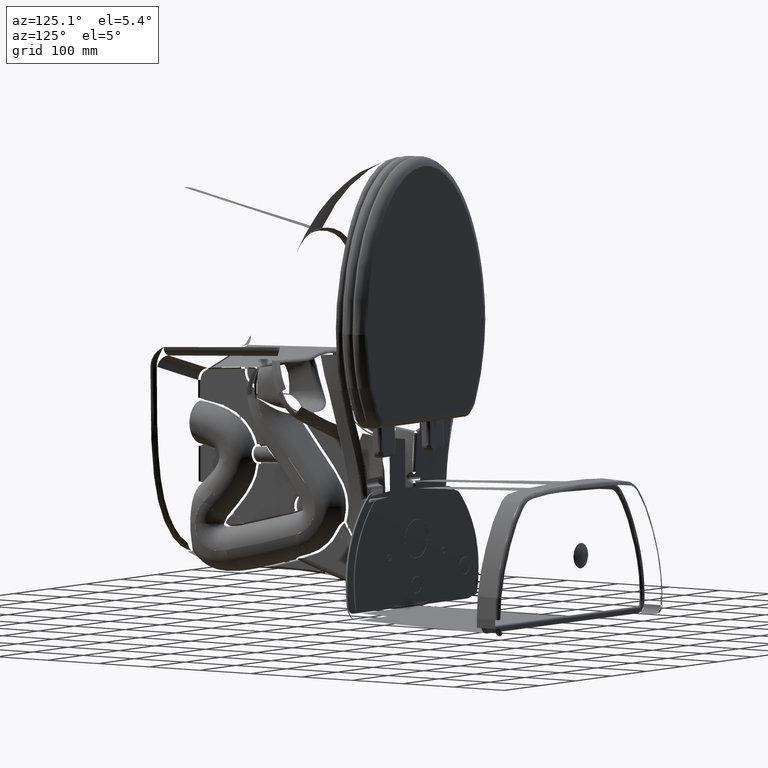
[diagram: clean part render]
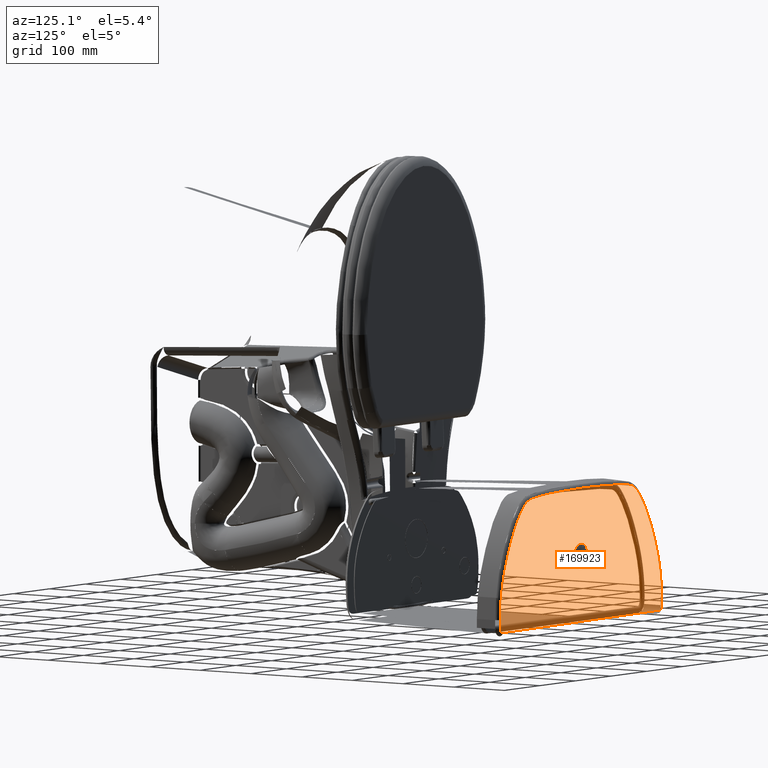
[diagram: same view with one face highlighted and labeled with its STEP entity id]
A machine part, auxiliary view. The second image highlights one B-rep face of the part: STEP entity #169923.
In plain terms, the highlighted planar face has unit normal (0, -1, -0).
Its self-contained STEP definition (entity closure, byte-faithful):
#55 = VERTEX_POINT ( 'NONE', #73596 ) ;
#104 = CARTESIAN_POINT ( 'NONE',  ( -3.003369389894534600, 8.431949192351313000, 30.95590368350390900 ) ) ;
#918 = CARTESIAN_POINT ( 'NONE',  ( -2.457274438022834900, 8.417617404940552100, 30.95590368391235000 ) ) ;
#1103 = CARTESIAN_POINT ( 'NONE',  ( 6.080376168401310000, 9.016218455638320300, 30.95590369029973500 ) ) ;
#1586 = B_SPLINE_CURVE_WITH_KNOTS ( 'NONE', 3,
 ( #8110, #111683, #96581, #69659 ),
 .UNSPECIFIED., .F., .F.,
 ( 4, 4 ),
 ( 0.0000000000000000000, 1.000000000000000000 ),
 .UNSPECIFIED. ) ;
#1748 = CARTESIAN_POINT ( 'NONE',  ( 8.324269014086221200, 13.18791265448700900, 30.95590369198691500 ) ) ;
#1807 = CARTESIAN_POINT ( 'NONE',  ( -1.668411225016929200, 8.403089896812206300, 30.95590368450238800 ) ) ;
#1817 = ORIENTED_EDGE ( 'NONE', *, *, #137226, .T. ) ;
#2922 = ORIENTED_EDGE ( 'NONE', *, *, #56924, .T. ) ;
#3461 = CARTESIAN_POINT ( 'NONE',  ( -8.916788854232281700, 14.62262783329960700, 30.95590367909369800 ) ) ;
#3490 = ORIENTED_EDGE ( 'NONE', *, *, #17752, .T. ) ;
#3523 = VERTEX_POINT ( 'NONE', #166878 ) ;
#3620 = B_SPLINE_CURVE_WITH_KNOTS ( 'NONE', 3,
 ( #5286, #20359, #92465, #122644 ),
 .UNSPECIFIED., .F., .F.,
 ( 4, 4 ),
 ( 0.0000000000000000000, 1.000000000000000000 ),
 .UNSPECIFIED. ) ;
#3792 = ORIENTED_EDGE ( 'NONE', *, *, #10543, .T. ) ;
#5283 = CARTESIAN_POINT ( 'NONE',  ( 8.748911418700130200, 16.72742995198136700, 30.95590369231197400 ) ) ;
#5286 = CARTESIAN_POINT ( 'NONE',  ( 4.263311126531103700, 8.554555321240945500, 30.95590368893960700 ) ) ;
#5413 = B_SPLINE_CURVE_WITH_KNOTS ( 'NONE', 3,
 ( #31281, #181376, #136178, #46358 ),
 .UNSPECIFIED., .F., .F.,
 ( 4, 4 ),
 ( 0.0000000000000000000, 1.000000000000000000 ),
 .UNSPECIFIED. ) ;
#5810 = CARTESIAN_POINT ( 'NONE',  ( -6.685463016620775400, 9.390434434810023500, 30.95590368075173200 ) ) ;
#6039 = CARTESIAN_POINT ( 'NONE',  ( 5.331977146998030800, 8.670959972216929000, 30.95590368973920900 ) ) ;
#6303 = CARTESIAN_POINT ( 'NONE',  ( 4.263311126531103700, 8.554555321240945500, 30.95590368893960700 ) ) ;
#6530 = VERTEX_POINT ( 'NONE', #114132 ) ;
#6593 = ORIENTED_EDGE ( 'NONE', *, *, #155252, .T. ) ;
#6609 = B_SPLINE_CURVE_WITH_KNOTS ( 'NONE', 3,
 ( #86256, #99331, #101304, #144621 ),
 .UNSPECIFIED., .F., .F.,
 ( 4, 4 ),
 ( 0.0000000000000000000, 1.000000000000000000 ),
 .UNSPECIFIED. ) ;
#6771 = CARTESIAN_POINT ( 'NONE',  ( -5.796862590440944100, 8.677580347562598100, 30.95590368141490600 ) ) ;
#6941 = CARTESIAN_POINT ( 'NONE',  ( 6.869431925669292800, 9.982038695616930500, 30.95590369089196900 ) ) ;
#7086 = ORIENTED_EDGE ( 'NONE', *, *, #79310, .T. ) ;
#7651 = CARTESIAN_POINT ( 'NONE',  ( -7.830648377220471800, 11.26513142626417300, 30.95590367989907300 ) ) ;
#8110 = CARTESIAN_POINT ( 'NONE',  ( -7.830648377220471800, 11.26513142626417300, 30.95590367989907300 ) ) ;
#8343 = CARTESIAN_POINT ( 'NONE',  ( 5.752923008207480000, 8.797902708223754000, 30.95590369005434200 ) ) ;
#8932 = B_SPLINE_CURVE_WITH_KNOTS ( 'NONE', 3,
 ( #120719, #152174, #45990, #150891 ),
 .UNSPECIFIED., .F., .F.,
 ( 4, 4 ),
 ( 0.0000000000000000000, 1.000000000000000000 ),
 .UNSPECIFIED. ) ;
#9170 = CARTESIAN_POINT ( 'NONE',  ( 5.371582569645009500, 8.677864608032415100, 30.95590368976884900 ) ) ;
#9721 = EDGE_CURVE ( 'NONE', #76044, #3523, #73495, .T. ) ;
#10158 = B_SPLINE_CURVE_WITH_KNOTS ( 'NONE', 3,
 ( #1748, #45061, #75793, #166918 ),
 .UNSPECIFIED., .F., .F.,
 ( 4, 4 ),
 ( 0.0000000000000000000, 1.000000000000000000 ),
 .UNSPECIFIED. ) ;
#10543 = EDGE_CURVE ( 'NONE', #80363, #21105, #155221, .T. ) ;
#10720 = B_SPLINE_CURVE_WITH_KNOTS ( 'NONE', 3,
 ( #179988, #88884, #16113, #90157 ),
 .UNSPECIFIED., .F., .F.,
 ( 4, 4 ),
 ( 0.0000000000000000000, 1.000000000000000000 ),
 .UNSPECIFIED. ) ;
#11252 = B_SPLINE_CURVE_WITH_KNOTS ( 'NONE', 3,
 ( #61041, #165290, #120060, #105611 ),
 .UNSPECIFIED., .F., .F.,
 ( 4, 4 ),
 ( 0.0000000000000000000, 1.000000000000000000 ),
 .UNSPECIFIED. ) ;
#11293 = ORIENTED_EDGE ( 'NONE', *, *, #179688, .T. ) ;
#11299 = CARTESIAN_POINT ( 'NONE',  ( -9.026757317834643900, 15.99727775830393700, 30.95590367901432700 ) ) ;
#11339 = CARTESIAN_POINT ( 'NONE',  ( -7.271846181818897700, 10.22120852392401600, 30.95590368031486500 ) ) ;
#11556 = ORIENTED_EDGE ( 'NONE', *, *, #188891, .T. ) ;
#11687 = ORIENTED_EDGE ( 'NONE', *, *, #82003, .T. ) ;
#11911 = ORIENTED_EDGE ( 'NONE', *, *, #100425, .T. ) ;
#12078 = CARTESIAN_POINT ( 'NONE',  ( -8.768599788590551100, 16.82447568965078900, 30.95590367920916800 ) ) ;
#12321 = CARTESIAN_POINT ( 'NONE',  ( 7.077837642934251300, 10.31357724807480000, 30.95590369104855500 ) ) ;
#12454 = CARTESIAN_POINT ( 'NONE',  ( -8.916788854232281700, 14.62262783329960700, 30.95590367909369800 ) ) ;
#12742 = EDGE_CURVE ( 'NONE', #33587, #128027, #78123, .T. ) ;
#13205 = VERTEX_POINT ( 'NONE', #68882 ) ;
#13491 = B_SPLINE_CURVE_WITH_KNOTS ( 'NONE', 3,
 ( #182306, #179748, #5283, #184884 ),
 .UNSPECIFIED., .F., .F.,
 ( 4, 4 ),
 ( 0.0000000000000000000, 1.000000000000000000 ),
 .UNSPECIFIED. ) ;
#13512 = CARTESIAN_POINT ( 'NONE',  ( -5.541063572347734800, 8.614643577692907800, 30.95590368160611000 ) ) ;
#13634 = EDGE_CURVE ( 'NONE', #120128, #84069, #70090, .T. ) ;
#13943 = B_SPLINE_CURVE_WITH_KNOTS ( 'NONE', 3,
 ( #81148, #109395, #5810, #51027 ),
 .UNSPECIFIED., .F., .F.,
 ( 4, 4 ),
 ( 0.0000000000000000000, 1.000000000000000000 ),
 .UNSPECIFIED. ) ;
#13968 = B_SPLINE_CURVE_WITH_KNOTS ( 'NONE', 3,
 ( #158523, #94242, #188636, #172935 ),
 .UNSPECIFIED., .F., .F.,
 ( 4, 4 ),
 ( 0.0000000000000000000, 1.000000000000000000 ),
 .UNSPECIFIED. ) ;
#14012 = EDGE_CURVE ( 'NONE', #144634, #163288, #80929, .T. ) ;
#14113 = ORIENTED_EDGE ( 'NONE', *, *, #22172, .T. ) ;
#14170 = EDGE_CURVE ( 'NONE', #53785, #76044, #46156, .T. ) ;
#14410 = B_SPLINE_CURVE_WITH_KNOTS ( 'NONE', 3,
 ( #169040, #19566, #33998, #49042 ),
 .UNSPECIFIED., .F., .F.,
 ( 4, 4 ),
 ( 0.0000000000000000000, 1.000000000000000000 ),
 .UNSPECIFIED. ) ;
#14643 = CARTESIAN_POINT ( 'NONE',  ( 8.757705618336613500, 16.65929464719133800, 30.95590369231840800 ) ) ;
#15014 = ORIENTED_EDGE ( 'NONE', *, *, #139059, .T. ) ;
#15277 = CARTESIAN_POINT ( 'NONE',  ( 3.868574304949331300, 8.524100233096850900, 30.95590368864428400 ) ) ;
#15314 = CARTESIAN_POINT ( 'NONE',  ( -5.796862590440944100, 8.677580347562598100, 30.95590368141490600 ) ) ;
#15687 = CARTESIAN_POINT ( 'NONE',  ( -0.09033691646062906600, 8.393086371530314300, 30.95590368568276000 ) ) ;
#15821 = EDGE_LOOP ( 'NONE', ( #11687, #37596, #51607, #14113, #91795, #168564, #87214, #121516, #160693, #166694, #72581, #39982, #133383, #121990, #6593, #2922, #188032, #88955, #170693, #160367, #34540, #47999, #11911, #79194, #89683, #186613, #86558, #81069, #92253, #63866, #1817, #42101, #173426, #118235, #102926, #47140, #111730, #177578, #26289, #95835, #104308, #18962, #189544, #50320, #100164, #11556, #154773, #84010, #133709, #180617, #65929, #130102, #147142, #7086, #11293, #192026, #165317, #18078, #179702, #31465, #102236, #116673, #29756, #20738, #52833, #109617, #149471, #37178, #141728, #3792, #146882, #193229, #121415, #3490, #189857, #78887, #95293, #88713, #27033, #170457, #89307, #15014 ) ) ;
#15917 = CARTESIAN_POINT ( 'NONE',  ( 3.352835370180079300, 8.490431278182283500, 30.95590368825844200 ) ) ;
#16113 = CARTESIAN_POINT ( 'NONE',  ( -8.928623690272962300, 16.76971580733162900, 30.95590367908935300 ) ) ;
#16148 = VERTEX_POINT ( 'NONE', #82821 ) ;
#16687 = CARTESIAN_POINT ( 'NONE',  ( -7.994242864212600000, 11.62418893278819000, 30.95590367977746000 ) ) ;
#16977 = CARTESIAN_POINT ( 'NONE',  ( 6.355541495827299800, 9.296677586142784800, 30.95590369050614000 ) ) ;
#16995 = CARTESIAN_POINT ( 'NONE',  ( -8.914331935763780000, 16.77938077646102500, 30.95590367910006400 ) ) ;
#17017 = CARTESIAN_POINT ( 'NONE',  ( -8.996873869027558300, 15.30786238994251900, 30.95590367903523400 ) ) ;
#17051 = CARTESIAN_POINT ( 'NONE',  ( 6.401247994483465900, 9.351293845600787700, 30.95590369054044500 ) ) ;
#17268 = B_SPLINE_CURVE_WITH_KNOTS ( 'NONE', 3,
 ( #40000, #39351, #85222, #76983 ),
 .UNSPECIFIED., .F., .F.,
 ( 4, 4 ),
 ( 0.0000000000000000000, 1.000000000000000000 ),
 .UNSPECIFIED. ) ;
#17497 = CARTESIAN_POINT ( 'NONE',  ( -5.979113363169290100, 8.755054558001180700, 30.95590368127874500 ) ) ;
#17531 = CARTESIAN_POINT ( 'NONE',  ( 6.525208257093306800, 9.504628427661025100, 30.95590369063348700 ) ) ;
#17752 = EDGE_CURVE ( 'NONE', #182556, #159150, #57877, .T. ) ;
#17955 = EDGE_CURVE ( 'NONE', #119968, #74529, #119186, .T. ) ;
#18033 = CARTESIAN_POINT ( 'NONE',  ( 7.888300398970481600, 11.97198998183991800, 30.95590369165826100 ) ) ;
#18078 = ORIENTED_EDGE ( 'NONE', *, *, #87675, .T. ) ;
#18962 = ORIENTED_EDGE ( 'NONE', *, *, #102588, .T. ) ;
#19050 = VERTEX_POINT ( 'NONE', #918 ) ;
#19419 = B_SPLINE_CURVE_WITH_KNOTS ( 'NONE', 3,
 ( #36244, #139877, #185080, #50671 ),
 .UNSPECIFIED., .F., .F.,
 ( 4, 4 ),
 ( 0.0000000000000000000, 1.000000000000000000 ),
 .UNSPECIFIED. ) ;
#19544 = CARTESIAN_POINT ( 'NONE',  ( 6.311980464609058900, 9.247068283315620400, 30.95590369047345500 ) ) ;
#19566 = CARTESIAN_POINT ( 'NONE',  ( 8.722840113325196000, 15.17951461003832000, 30.95590369228922600 ) ) ;
#19616 = CARTESIAN_POINT ( 'NONE',  ( -6.199797671276899200, 8.893150146376246600, 30.95590368111396300 ) ) ;
#20359 = CARTESIAN_POINT ( 'NONE',  ( 4.127997744737147200, 8.543343918947771300, 30.95590368883837200 ) ) ;
#20518 = B_SPLINE_CURVE_WITH_KNOTS ( 'NONE', 3,
 ( #61075, #81438, #37548, #6771 ),
 .UNSPECIFIED., .F., .F.,
 ( 4, 4 ),
 ( 0.0000000000000000000, 1.000000000000000000 ),
 .UNSPECIFIED. ) ;
#20738 = ORIENTED_EDGE ( 'NONE', *, *, #108069, .T. ) ;
#20748 = CARTESIAN_POINT ( 'NONE',  ( 4.408440856580440000, 8.566580056169552600, 30.95590368904819200 ) ) ;
#20753 = CARTESIAN_POINT ( 'NONE',  ( 5.032947763295641900, 8.629625058354589500, 30.95590368951545200 ) ) ;
#20803 = CARTESIAN_POINT ( 'NONE',  ( 8.691979545494231000, 16.83253032196337900, 30.95590369226960800 ) ) ;
#21044 = CARTESIAN_POINT ( 'NONE',  ( 2.286253222760199000, 8.444316760302756500, 30.95590368746054500 ) ) ;
#21077 = CARTESIAN_POINT ( 'NONE',  ( -6.036933345959311300, 8.784835357621913600, 30.95590368123556100 ) ) ;
#21105 = VERTEX_POINT ( 'NONE', #145176 ) ;
#21184 = VERTEX_POINT ( 'NONE', #52736 ) ;
#21362 = B_SPLINE_CURVE_WITH_KNOTS ( 'NONE', 3,
 ( #138037, #108511, #139983, #48200 ),
 .UNSPECIFIED., .F., .F.,
 ( 4, 4 ),
 ( 0.0000000000000000000, 1.000000000000000000 ),
 .UNSPECIFIED. ) ;
#21855 = VERTEX_POINT ( 'NONE', #58328 ) ;
#22172 = EDGE_CURVE ( 'NONE', #55, #58860, #14410, .T. ) ;
#22352 = CARTESIAN_POINT ( 'NONE',  ( -5.979113363169290100, 8.755054558001180700, 30.95590368127874500 ) ) ;
#22723 = B_SPLINE_CURVE_WITH_KNOTS ( 'NONE', 3,
 ( #86735, #23826, #177159, #87371 ),
 .UNSPECIFIED., .F., .F.,
 ( 4, 4 ),
 ( 0.0000000000000000000, 1.000000000000000000 ),
 .UNSPECIFIED. ) ;
#22777 = CARTESIAN_POINT ( 'NONE',  ( 5.632864909077558700, 8.748358850560629600, 30.95590368996443300 ) ) ;
#23038 = CARTESIAN_POINT ( 'NONE',  ( -9.029891622255904700, 16.56025806249764200, 30.95590367901278800 ) ) ;
#23357 = CARTESIAN_POINT ( 'NONE',  ( -8.819832580767714700, 16.81914152748228400, 30.95590367917083100 ) ) ;
#23789 = CARTESIAN_POINT ( 'NONE',  ( -7.531913339166675500, 10.66536960777586500, 30.95590368012126700 ) ) ;
#23826 = CARTESIAN_POINT ( 'NONE',  ( -8.900040193223096800, 16.78904573980301900, 30.95590367911077200 ) ) ;
#23989 = CARTESIAN_POINT ( 'NONE',  ( -5.604007317893697300, 8.626659548095670300, 30.95590368155905000 ) ) ;
#24102 = LINE ( 'NONE', #76719, #117984 ) ;
#24436 = B_SPLINE_CURVE_WITH_KNOTS ( 'NONE', 3,
 ( #22352, #21077, #67548, #140390 ),
 .UNSPECIFIED., .F., .F.,
 ( 4, 4 ),
 ( 0.0000000000000000000, 1.000000000000000000 ),
 .UNSPECIFIED. ) ;
#24730 = CARTESIAN_POINT ( 'NONE',  ( -5.700828230594487100, 8.648988839311027000, 30.95590368148667400 ) ) ;
#25107 = CARTESIAN_POINT ( 'NONE',  ( -6.147879596074804300, 8.856940686627167400, 30.95590368115272300 ) ) ;
#25465 = B_SPLINE_CURVE_WITH_KNOTS ( 'NONE', 3,
 ( #133844, #45337, #104, #44027 ),
 .UNSPECIFIED., .F., .F.,
 ( 4, 4 ),
 ( 0.0000000000000000000, 1.000000000000000000 ),
 .UNSPECIFIED. ) ;
#25806 = CARTESIAN_POINT ( 'NONE',  ( -5.359112698270344300, 8.588535405791601500, 30.95590368174215400 ) ) ;
#26289 = ORIENTED_EDGE ( 'NONE', *, *, #14170, .T. ) ;
#27033 = ORIENTED_EDGE ( 'NONE', *, *, #12742, .T. ) ;
#27593 = VERTEX_POINT ( 'NONE', #189397 ) ;
#28041 = CARTESIAN_POINT ( 'NONE',  ( -5.832634744999999100, 8.689640557211680200, 30.95590368138817200 ) ) ;
#28054 = CARTESIAN_POINT ( 'NONE',  ( 5.979544412315748400, 8.937336916266536600, 30.95590369022414400 ) ) ;
#28259 = CARTESIAN_POINT ( 'NONE',  ( -8.986422186204725500, 16.70648329804921400, 30.95590367904598500 ) ) ;
#28879 = CARTESIAN_POINT ( 'NONE',  ( 5.107627136330314100, 8.638730634298031700, 30.95590368957132900 ) ) ;
#28889 = B_SPLINE_CURVE_WITH_KNOTS ( 'NONE', 3,
 ( #48777, #79555, #40185, #173911 ),
 .UNSPECIFIED., .F., .F.,
 ( 4, 4 ),
 ( 0.0000000000000000000, 1.000000000000000000 ),
 .UNSPECIFIED. ) ;
#29169 = CARTESIAN_POINT ( 'NONE',  ( -6.466182432086615300, 9.138250868871654800, 30.95590368091522000 ) ) ;
#29756 = ORIENTED_EDGE ( 'NONE', *, *, #126440, .T. ) ;
#29760 = CARTESIAN_POINT ( 'NONE',  ( -5.409077809566930700, 8.595079426411024000, 30.95590368170479700 ) ) ;
#29965 = EDGE_CURVE ( 'NONE', #57631, #33587, #192182, .T. ) ;
#30030 = B_SPLINE_CURVE_WITH_KNOTS ( 'NONE', 3,
 ( #188270, #41433, #192816, #177080 ),
 .UNSPECIFIED., .F., .F.,
 ( 4, 4 ),
 ( 0.0000000000000000000, 1.000000000000000000 ),
 .UNSPECIFIED. ) ;
#30476 = CARTESIAN_POINT ( 'NONE',  ( 8.524813294474409300, 13.94484994362204900, 30.95590369213850900 ) ) ;
#30511 = EDGE_CURVE ( 'NONE', #32838, #53785, #90057, .T. ) ;
#30655 = CARTESIAN_POINT ( 'NONE',  ( 5.219915810659448300, 8.653457004067325500, 30.95590368965535100 ) ) ;
#30677 = VERTEX_POINT ( 'NONE', #29760 ) ;
#31281 = CARTESIAN_POINT ( 'NONE',  ( 8.544776929371652200, 16.91582323571811100, 30.95590369215967600 ) ) ;
#31465 = ORIENTED_EDGE ( 'NONE', *, *, #169677, .T. ) ;
#31634 = CARTESIAN_POINT ( 'NONE',  ( 2.834410045874039300, 8.464913657964436000, 30.95590368787061000 ) ) ;
#31829 = VERTEX_POINT ( 'NONE', #109920 ) ;
#32041 = VERTEX_POINT ( 'NONE', #130143 ) ;
#32048 = EDGE_CURVE ( 'NONE', #75037, #27593, #39434, .T. ) ;
#32838 = VERTEX_POINT ( 'NONE', #188674 ) ;
#33587 = VERTEX_POINT ( 'NONE', #162777 ) ;
#33715 = CARTESIAN_POINT ( 'NONE',  ( 8.712610722742914100, 16.80502688382401600, 30.95590369228498400 ) ) ;
#33998 = CARTESIAN_POINT ( 'NONE',  ( 8.698686908317192500, 14.95077319368189000, 30.95590369227068500 ) ) ;
#34054 = VERTEX_POINT ( 'NONE', #15687 ) ;
#34540 = ORIENTED_EDGE ( 'NONE', *, *, #32048, .T. ) ;
#34570 = CARTESIAN_POINT ( 'NONE',  ( -7.714610503759833400, 11.02357190458632600, 30.95590367998536200 ) ) ;
#34793 = VERTEX_POINT ( 'NONE', #151105 ) ;
#35019 = VERTEX_POINT ( 'NONE', #141179 ) ;
#35323 = CARTESIAN_POINT ( 'NONE',  ( 4.263311126531103700, 8.554555321240945500, 30.95590368893960700 ) ) ;
#35448 = CARTESIAN_POINT ( 'NONE',  ( -6.615562930933068100, 9.306433339289764500, 30.95590368080383600 ) ) ;
#35694 = CARTESIAN_POINT ( 'NONE',  ( 4.995236032829528700, 8.625255541636221300, 30.95590368948723300 ) ) ;
#35791 = CARTESIAN_POINT ( 'NONE',  ( 4.995236032829528700, 8.625255541636221300, 30.95590368948723300 ) ) ;
#36244 = CARTESIAN_POINT ( 'NONE',  ( -9.010450417425198900, 16.66092129397244600, 30.95590367902791900 ) ) ;
#36702 = EDGE_CURVE ( 'NONE', #58178, #100051, #177520, .T. ) ;
#36742 = CARTESIAN_POINT ( 'NONE',  ( 2.059638963141079400, 8.436555624675726500, 30.95590368729102300 ) ) ;
#37062 = EDGE_CURVE ( 'NONE', #153211, #80035, #64489, .T. ) ;
#37178 = ORIENTED_EDGE ( 'NONE', *, *, #136198, .T. ) ;
#37548 = CARTESIAN_POINT ( 'NONE',  ( -5.766165430133876900, 8.667231124190426100, 30.95590368143784200 ) ) ;
#37596 = ORIENTED_EDGE ( 'NONE', *, *, #91969, .T. ) ;
#38238 = VERTEX_POINT ( 'NONE', #14643 ) ;
#38618 = B_SPLINE_CURVE_WITH_KNOTS ( 'NONE', 3,
 ( #23038, #65654, #144942, #161300 ),
 .UNSPECIFIED., .F., .F.,
 ( 4, 4 ),
 ( 0.0000000000000000000, 1.000000000000000000 ),
 .UNSPECIFIED. ) ;
#38812 = EDGE_CURVE ( 'NONE', #125382, #78068, #13943, .T. ) ;
#38832 = EDGE_CURVE ( 'NONE', #42969, #181831, #184597, .T. ) ;
#39351 = CARTESIAN_POINT ( 'NONE',  ( -5.637813989951426100, 8.633509746635299500, 30.95590368153377600 ) ) ;
#39434 = B_SPLINE_CURVE_WITH_KNOTS ( 'NONE', 3,
 ( #71103, #55418, #190442, #173445 ),
 .UNSPECIFIED., .F., .F.,
 ( 4, 4 ),
 ( 0.0000000000000000000, 1.000000000000000000 ),
 .UNSPECIFIED. ) ;
#39684 = CARTESIAN_POINT ( 'NONE',  ( -4.161956249635222700, 8.486629994670870800, 30.95590368263740500 ) ) ;
#39715 = CARTESIAN_POINT ( 'NONE',  ( -8.785852511706036000, 16.82437963223845400, 30.95590367919626500 ) ) ;
#39788 = CARTESIAN_POINT ( 'NONE',  ( 8.760840330141340000, 16.09624073336850700, 30.95590369231957300 ) ) ;
#39982 = ORIENTED_EDGE ( 'NONE', *, *, #36702, .T. ) ;
#40000 = CARTESIAN_POINT ( 'NONE',  ( -5.604007317893697300, 8.626659548095670300, 30.95590368155905000 ) ) ;
#40096 = CARTESIAN_POINT ( 'NONE',  ( -1.378466555452624800, 8.398741233865225200, 30.95590368471925700 ) ) ;
#40185 = CARTESIAN_POINT ( 'NONE',  ( 8.402377618414306000, 13.44422411156102500, 30.95590369204587900 ) ) ;
#40575 = CARTESIAN_POINT ( 'NONE',  ( 0.9388129222928755000, 8.407224198084119100, 30.95590368645258600 ) ) ;
#41244 = CARTESIAN_POINT ( 'NONE',  ( 6.940049212111550700, 10.08858358933924200, 30.95590369094501400 ) ) ;
#41433 = CARTESIAN_POINT ( 'NONE',  ( -9.015591913376640700, 15.53962012184461900, 30.95590367902172000 ) ) ;
#42101 = ORIENTED_EDGE ( 'NONE', *, *, #13634, .T. ) ;
#42969 = VERTEX_POINT ( 'NONE', #25107 ) ;
#43406 = EDGE_CURVE ( 'NONE', #34054, #158989, #11252, .T. ) ;
#43907 = CARTESIAN_POINT ( 'NONE',  ( 5.925496681058529400, 8.897564060605381200, 30.95590369018363600 ) ) ;
#44027 = CARTESIAN_POINT ( 'NONE',  ( -3.245973945415746400, 8.441108343799605500, 30.95590368332246100 ) ) ;
#44277 = CARTESIAN_POINT ( 'NONE',  ( -5.573495694032771100, 8.620477013216397900, 30.95590368158185900 ) ) ;
#44800 = CARTESIAN_POINT ( 'NONE',  ( 8.324269014086221200, 13.18791265448700900, 30.95590369198691500 ) ) ;
#45061 = CARTESIAN_POINT ( 'NONE',  ( 8.251159335351308900, 12.94800501450458600, 30.95590369193172700 ) ) ;
#45337 = CARTESIAN_POINT ( 'NONE',  ( -2.740469554096898200, 8.424118879398296400, 30.95590368370053400 ) ) ;
#45990 = CARTESIAN_POINT ( 'NONE',  ( -8.836735052434386600, 16.81568147678228100, 30.95590367915818000 ) ) ;
#46156 = B_SPLINE_CURVE_WITH_KNOTS ( 'NONE', 3,
 ( #189135, #39684, #83604, #190429 ),
 .UNSPECIFIED., .F., .F.,
 ( 4, 4 ),
 ( 0.0000000000000000000, 1.000000000000000000 ),
 .UNSPECIFIED. ) ;
#46358 = CARTESIAN_POINT ( 'NONE',  ( 8.594151168796850400, 16.90114541668819100, 30.95590369219657800 ) ) ;
#46483 = CARTESIAN_POINT ( 'NONE',  ( -7.057090789543309500, 9.889320701526774100, 30.95590368047480500 ) ) ;
#46486 = CARTESIAN_POINT ( 'NONE',  ( -9.016964008824144700, 16.64494509723177600, 30.95590367902301700 ) ) ;
#46530 = CARTESIAN_POINT ( 'NONE',  ( 6.525208257093306800, 9.504628427661025100, 30.95590369063348700 ) ) ;
#47140 = ORIENTED_EDGE ( 'NONE', *, *, #54454, .T. ) ;
#47372 = CARTESIAN_POINT ( 'NONE',  ( -6.304174660460628100, 8.980494024447638800, 30.95590368103606900 ) ) ;
#47646 = EDGE_CURVE ( 'NONE', #27593, #118373, #67577, .T. ) ;
#47999 = ORIENTED_EDGE ( 'NONE', *, *, #47646, .T. ) ;
#48057 = VERTEX_POINT ( 'NONE', #152777 ) ;
#48200 = CARTESIAN_POINT ( 'NONE',  ( -5.506710952838586700, 8.609159241525196300, 30.95590368163179200 ) ) ;
#48717 = CARTESIAN_POINT ( 'NONE',  ( -8.295759262354330600, 12.35067814865984200, 30.95590367955345500 ) ) ;
#48777 = CARTESIAN_POINT ( 'NONE',  ( 8.524813294474409300, 13.94484994362204900, 30.95590369213850900 ) ) ;
#49042 = CARTESIAN_POINT ( 'NONE',  ( 8.666185188473623000, 14.72052532474015700, 30.95590369224588700 ) ) ;
#49109 = CARTESIAN_POINT ( 'NONE',  ( -8.766381507889761300, 13.84684794750512200, 30.95590367920456700 ) ) ;
#49425 = CARTESIAN_POINT ( 'NONE',  ( 8.544776929371652200, 16.91582323571811100, 30.95590369215967600 ) ) ;
#49507 = CARTESIAN_POINT ( 'NONE',  ( 5.812244972261811200, 8.830416698057874200, 30.95590369009877900 ) ) ;
#49724 = CARTESIAN_POINT ( 'NONE',  ( -6.304174660460628100, 8.980494024447638800, 30.95590368103606900 ) ) ;
#49927 = LINE ( 'NONE', #129872, #94514 ) ;
#49955 = CARTESIAN_POINT ( 'NONE',  ( -9.010450417425198900, 16.66092129397244600, 30.95590367902791900 ) ) ;
#50152 = CARTESIAN_POINT ( 'NONE',  ( -7.271846181818897700, 10.22120852392401600, 30.95590368031486500 ) ) ;
#50320 = ORIENTED_EDGE ( 'NONE', *, *, #97952, .T. ) ;
#50671 = CARTESIAN_POINT ( 'NONE',  ( -8.986422186204725500, 16.70648329804921400, 30.95590367904598500 ) ) ;
#50869 = CARTESIAN_POINT ( 'NONE',  ( 5.070411464462571500, 8.634116755908527500, 30.95590368954348300 ) ) ;
#51027 = CARTESIAN_POINT ( 'NONE',  ( -6.722550439610236200, 9.436737939504723700, 30.95590368072408800 ) ) ;
#51243 = CARTESIAN_POINT ( 'NONE',  ( -7.271846181818897700, 10.22120852392401600, 30.95590368031486500 ) ) ;
#51607 = ORIENTED_EDGE ( 'NONE', *, *, #178313, .T. ) ;
#51809 = CARTESIAN_POINT ( 'NONE',  ( -6.512984869910739300, 9.187831006325174200, 30.95590368088031900 ) ) ;
#52522 = CARTESIAN_POINT ( 'NONE',  ( -7.201407141073475200, 10.10653439319039600, 30.95590368036731400 ) ) ;
#52736 = CARTESIAN_POINT ( 'NONE',  ( 6.270564900828740700, 9.202465937119292500, 30.95590369044238000 ) ) ;
#52833 = ORIENTED_EDGE ( 'NONE', *, *, #164174, .T. ) ;
#52855 = CARTESIAN_POINT ( 'NONE',  ( 8.712610722742914100, 16.80502688382401600, 30.95590369228498400 ) ) ;
#52868 = EDGE_CURVE ( 'NONE', #95813, #153211, #113316, .T. ) ;
#53432 = CARTESIAN_POINT ( 'NONE',  ( 7.621282952720474000, 11.35941803482952900, 30.95590369145724500 ) ) ;
#53785 = VERTEX_POINT ( 'NONE', #94969 ) ;
#53863 = CARTESIAN_POINT ( 'NONE',  ( -1.668411225016929200, 8.403089896812206300, 30.95590368450238800 ) ) ;
#54454 = EDGE_CURVE ( 'NONE', #54685, #19050, #140861, .T. ) ;
#54654 = CARTESIAN_POINT ( 'NONE',  ( -9.025128252314958700, 16.61154706870472400, 30.95590367901683500 ) ) ;
#54685 = VERTEX_POINT ( 'NONE', #1807 ) ;
#55123 = CARTESIAN_POINT ( 'NONE',  ( 8.910520523358266900, 8.392318785884647500, 30.95590369241535800 ) ) ;
#55265 = CARTESIAN_POINT ( 'NONE',  ( 8.730453712232417700, 16.77563791240301700, 30.95590369229827800 ) ) ;
#55418 = CARTESIAN_POINT ( 'NONE',  ( 5.575041108544225700, 8.727066428151182700, 30.95590368992113600 ) ) ;
#55436 = CARTESIAN_POINT ( 'NONE',  ( -8.802930109098422700, 16.82260157818228700, 30.95590367918347900 ) ) ;
#55656 = EDGE_CURVE ( 'NONE', #118165, #80363, #19419, .T. ) ;
#55794 = CARTESIAN_POINT ( 'NONE',  ( -6.356578433507883700, 9.026763929946863400, 30.95590368099696800 ) ) ;
#56080 = CARTESIAN_POINT ( 'NONE',  ( -4.427772573370077700, 8.504798701376378400, 30.95590368243861300 ) ) ;
#56462 = B_SPLINE_CURVE_WITH_KNOTS ( 'NONE', 3,
 ( #130294, #28041, #100115, #116514 ),
 .UNSPECIFIED., .F., .F.,
 ( 4, 4 ),
 ( 0.0000000000000000000, 1.000000000000000000 ),
 .UNSPECIFIED. ) ;
#56924 = EDGE_CURVE ( 'NONE', #72583, #21184, #106290, .T. ) ;
#57459 = VERTEX_POINT ( 'NONE', #50152 ) ;
#57631 = VERTEX_POINT ( 'NONE', #173994 ) ;
#57804 = B_SPLINE_CURVE_WITH_KNOTS ( 'NONE', 3,
 ( #156745, #51809, #139705, #35448 ),
 .UNSPECIFIED., .F., .F.,
 ( 4, 4 ),
 ( 0.0000000000000000000, 1.000000000000000000 ),
 .UNSPECIFIED. ) ;
#57877 = B_SPLINE_CURVE_WITH_KNOTS ( 'NONE', 3,
 ( #23357, #55436, #39715, #188506 ),
 .UNSPECIFIED., .F., .F.,
 ( 4, 4 ),
 ( 0.0000000000000000000, 1.000000000000000000 ),
 .UNSPECIFIED. ) ;
#57900 = CARTESIAN_POINT ( 'NONE',  ( 8.752371474343700400, 16.71052747030394100, 30.95590369231452900 ) ) ;
#58178 = VERTEX_POINT ( 'NONE', #12321 ) ;
#58328 = CARTESIAN_POINT ( 'NONE',  ( -9.029891622255904700, 16.56025806249764200, 30.95590367901278800 ) ) ;
#58468 = CARTESIAN_POINT ( 'NONE',  ( 4.657669044378740100, 8.589638267825984400, 30.95590368923466000 ) ) ;
#58597 = EDGE_CURVE ( 'NONE', #100051, #151171, #71983, .T. ) ;
#58708 = B_SPLINE_CURVE_WITH_KNOTS ( 'NONE', 3,
 ( #138852, #126997, #157185, #96170 ),
 .UNSPECIFIED., .F., .F.,
 ( 4, 4 ),
 ( 0.0000000000000000000, 1.000000000000000000 ),
 .UNSPECIFIED. ) ;
#58860 = VERTEX_POINT ( 'NONE', #68860 ) ;
#59165 = CARTESIAN_POINT ( 'NONE',  ( 7.621282952720474000, 11.35941803482952900, 30.95590369145724500 ) ) ;
#59201 = DIRECTION ( 'NONE',  ( 0.005567237120289258600, -0.9999845028153419000, 2.064421001568150600E-012 ) ) ;
#59213 = CARTESIAN_POINT ( 'NONE',  ( -3.245973945415746400, 8.441108343799605500, 30.95590368332246100 ) ) ;
#59461 = CARTESIAN_POINT ( 'NONE',  ( 5.331977146998030800, 8.670959972216929000, 30.95590368973920900 ) ) ;
#60014 = CARTESIAN_POINT ( 'NONE',  ( -6.722550439610236200, 9.436737939504723700, 30.95590368072408800 ) ) ;
#60114 = EDGE_CURVE ( 'NONE', #169946, #32041, #180127, .T. ) ;
#60144 = VERTEX_POINT ( 'NONE', #29169 ) ;
#61041 = CARTESIAN_POINT ( 'NONE',  ( -0.09033691646062906600, 8.393086371530314300, 30.95590368568276000 ) ) ;
#61075 = CARTESIAN_POINT ( 'NONE',  ( -5.700828230594487100, 8.648988839311027000, 30.95590368148667400 ) ) ;
#61724 = CARTESIAN_POINT ( 'NONE',  ( -6.826427568023622600, 9.569610611710629700, 30.95590368064667100 ) ) ;
#62931 = EDGE_CURVE ( 'NONE', #21105, #92913, #10720, .T. ) ;
#63233 = CARTESIAN_POINT ( 'NONE',  ( -0.09033691646062906600, 8.393086371530314300, 30.95590368568276000 ) ) ;
#63866 = ORIENTED_EDGE ( 'NONE', *, *, #167227, .T. ) ;
#64110 = CARTESIAN_POINT ( 'NONE',  ( 6.270564900828740700, 9.202465937119292500, 30.95590369044238000 ) ) ;
#64489 = B_SPLINE_CURVE_WITH_KNOTS ( 'NONE', 3,
 ( #169558, #50869, #20753, #35791 ),
 .UNSPECIFIED., .F., .F.,
 ( 4, 4 ),
 ( 0.0000000000000000000, 1.000000000000000000 ),
 .UNSPECIFIED. ) ;
#64559 = B_SPLINE_CURVE_WITH_KNOTS ( 'NONE', 3,
 ( #61724, #152205, #165340, #167255 ),
 .UNSPECIFIED., .F., .F.,
 ( 4, 4 ),
 ( 0.0000000000000000000, 1.000000000000000000 ),
 .UNSPECIFIED. ) ;
#64652 = VERTEX_POINT ( 'NONE', #59165 ) ;
#64878 = CARTESIAN_POINT ( 'NONE',  ( 0.7020319198884255000, 8.402885164852362400, 30.95590368627546600 ) ) ;
#64918 = VERTEX_POINT ( 'NONE', #57900 ) ;
#64947 = CARTESIAN_POINT ( 'NONE',  ( 4.995236032829528700, 8.625255541636221300, 30.95590368948723300 ) ) ;
#65154 = CARTESIAN_POINT ( 'NONE',  ( 7.330866312848160100, 10.75845819979566400, 30.95590369123875300 ) ) ;
#65304 = CARTESIAN_POINT ( 'NONE',  ( 4.539893495862986400, 8.578274371697899500, 30.95590368914654200 ) ) ;
#65595 = CARTESIAN_POINT ( 'NONE',  ( 1.494207952992678200, 8.420836437713781200, 30.95590368686804800 ) ) ;
#65654 = CARTESIAN_POINT ( 'NONE',  ( -9.029987674187660600, 16.57751078558503700, 30.95590367901312900 ) ) ;
#65658 = CARTESIAN_POINT ( 'NONE',  ( 8.755831518018242200, 16.69362498283858200, 30.95590369231707900 ) ) ;
#65880 = CARTESIAN_POINT ( 'NONE',  ( -6.826427568023622600, 9.569610611710629700, 30.95590368064667100 ) ) ;
#65895 = EDGE_CURVE ( 'NONE', #92831, #57459, #169224, .T. ) ;
#65929 = ORIENTED_EDGE ( 'NONE', *, *, #193748, .T. ) ;
#66191 = EDGE_CURVE ( 'NONE', #30677, #185938, #21362, .T. ) ;
#66868 = VERTEX_POINT ( 'NONE', #24730 ) ;
#66932 = CARTESIAN_POINT ( 'NONE',  ( 8.752371474343700400, 16.71052747030394100, 30.95590369231452900 ) ) ;
#67548 = CARTESIAN_POINT ( 'NONE',  ( -6.093188756927816000, 8.818797400497242500, 30.95590368119355100 ) ) ;
#67577 = B_SPLINE_CURVE_WITH_KNOTS ( 'NONE', 3,
 ( #80597, #139674, #9170, #84519 ),
 .UNSPECIFIED., .F., .F.,
 ( 4, 4 ),
 ( 0.0000000000000000000, 1.000000000000000000 ),
 .UNSPECIFIED. ) ;
#67792 = CARTESIAN_POINT ( 'NONE',  ( -0.8794480352263777100, 8.394037441200000100, 30.95590368509250800 ) ) ;
#68051 = CARTESIAN_POINT ( 'NONE',  ( 6.176411906137275300, 9.104613686536751500, 30.95590369037175500 ) ) ;
#68269 = CARTESIAN_POINT ( 'NONE',  ( -0.8794480352263777100, 8.394037441200000100, 30.95590368509250800 ) ) ;
#68370 = CARTESIAN_POINT ( 'NONE',  ( 8.712610722742914100, 16.80502688382401600, 30.95590369228498400 ) ) ;
#68860 = CARTESIAN_POINT ( 'NONE',  ( 8.666185188473623000, 14.72052532474015700, 30.95590369224588700 ) ) ;
#68882 = CARTESIAN_POINT ( 'NONE',  ( 8.737144783690945700, 16.75973522456968800, 30.95590369230324500 ) ) ;
#69659 = CARTESIAN_POINT ( 'NONE',  ( -7.994242864212600000, 11.62418893278819000, 30.95590367977746000 ) ) ;
#69673 = EDGE_CURVE ( 'NONE', #128027, #91522, #188275, .T. ) ;
#69860 = CARTESIAN_POINT ( 'NONE',  ( -8.637964735729655200, 13.34646312885353000, 30.95590367929957400 ) ) ;
#70090 = B_SPLINE_CURVE_WITH_KNOTS ( 'NONE', 3,
 ( #176250, #161845, #40575, #117260 ),
 .UNSPECIFIED., .F., .F.,
 ( 4, 4 ),
 ( 0.0000000000000000000, 1.000000000000000000 ),
 .UNSPECIFIED. ) ;
#71103 = CARTESIAN_POINT ( 'NONE',  ( 5.632864909077558700, 8.748358850560629600, 30.95590368996443300 ) ) ;
#71377 = CARTESIAN_POINT ( 'NONE',  ( -5.213279333358268100, 8.572325050497639200, 30.95590368185120100 ) ) ;
#71588 = EDGE_CURVE ( 'NONE', #80035, #144634, #183410, .T. ) ;
#71983 = B_SPLINE_CURVE_WITH_KNOTS ( 'NONE', 3,
 ( #92808, #153786, #152496, #183916 ),
 .UNSPECIFIED., .F., .F.,
 ( 4, 4 ),
 ( 0.0000000000000000000, 1.000000000000000000 ),
 .UNSPECIFIED. ) ;
#72149 = CARTESIAN_POINT ( 'NONE',  ( 8.738644803497638900, 15.40674957380944900, 30.95590369230152600 ) ) ;
#72581 = ORIENTED_EDGE ( 'NONE', *, *, #77552, .T. ) ;
#72583 = VERTEX_POINT ( 'NONE', #86645 ) ;
#72710 = CARTESIAN_POINT ( 'NONE',  ( -8.996873869027558300, 15.30786238994251900, 30.95590367903523400 ) ) ;
#72749 = CARTESIAN_POINT ( 'NONE',  ( 8.527836956239896800, 16.91909486886220600, 30.95590369214701500 ) ) ;
#73389 = CARTESIAN_POINT ( 'NONE',  ( 8.493487879529134000, 16.92058659286141500, 30.95590369212132800 ) ) ;
#73432 = CARTESIAN_POINT ( 'NONE',  ( -8.976916956821526100, 16.72088177641403900, 30.95590367905312900 ) ) ;
#73495 = B_SPLINE_CURVE_WITH_KNOTS ( 'NONE', 3,
 ( #110865, #144270, #188831, #130485 ),
 .UNSPECIFIED., .F., .F.,
 ( 4, 4 ),
 ( 0.0000000000000000000, 1.000000000000000000 ),
 .UNSPECIFIED. ) ;
#73596 = CARTESIAN_POINT ( 'NONE',  ( 8.738644803497638900, 15.40674957380944900, 30.95590369230152600 ) ) ;
#73708 = B_SPLINE_CURVE_WITH_KNOTS ( 'NONE', 3,
 ( #46530, #120622, #166507, #17051 ),
 .UNSPECIFIED., .F., .F.,
 ( 4, 4 ),
 ( 0.0000000000000000000, 1.000000000000000000 ),
 .UNSPECIFIED. ) ;
#74349 = EDGE_CURVE ( 'NONE', #58860, #16148, #188063, .T. ) ;
#74417 = CARTESIAN_POINT ( 'NONE',  ( -5.604007317893697300, 8.626659548095670300, 30.95590368155905000 ) ) ;
#74529 = VERTEX_POINT ( 'NONE', #117428 ) ;
#75037 = VERTEX_POINT ( 'NONE', #168967 ) ;
#75790 = CARTESIAN_POINT ( 'NONE',  ( 6.131103674087400500, 9.062910142333858900, 30.95590369033777700 ) ) ;
#75793 = CARTESIAN_POINT ( 'NONE',  ( 8.167238370209183500, 12.70109904210891500, 30.95590369186843200 ) ) ;
#75794 = EDGE_CURVE ( 'NONE', #97642, #182556, #8932, .T. ) ;
#76044 = VERTEX_POINT ( 'NONE', #56080 ) ;
#76719 = CARTESIAN_POINT ( 'NONE',  ( -9.007750576705305400, 12.58329589123119900, 30.95590367902117600 ) ) ;
#76852 = VERTEX_POINT ( 'NONE', #11299 ) ;
#76983 = CARTESIAN_POINT ( 'NONE',  ( -5.700828230594487100, 8.648988839311027000, 30.95590368148667400 ) ) ;
#77552 = EDGE_CURVE ( 'NONE', #6530, #58178, #178292, .T. ) ;
#77702 = EDGE_CURVE ( 'NONE', #102652, #31829, #1586, .T. ) ;
#78068 = VERTEX_POINT ( 'NONE', #103899 ) ;
#78123 = B_SPLINE_CURVE_WITH_KNOTS ( 'NONE', 3,
 ( #141966, #113092, #157697, #126243 ),
 .UNSPECIFIED., .F., .F.,
 ( 4, 4 ),
 ( 0.0000000000000000000, 1.000000000000000000 ),
 .UNSPECIFIED. ) ;
#78667 = EDGE_CURVE ( 'NONE', #119624, #42969, #24436, .T. ) ;
#78887 = ORIENTED_EDGE ( 'NONE', *, *, #159443, .T. ) ;
#79194 = ORIENTED_EDGE ( 'NONE', *, *, #52868, .T. ) ;
#79310 = EDGE_CURVE ( 'NONE', #78068, #114070, #123015, .T. ) ;
#79555 = CARTESIAN_POINT ( 'NONE',  ( 8.469225711877035300, 13.69653654127270500, 30.95590369209641000 ) ) ;
#80035 = VERTEX_POINT ( 'NONE', #35694 ) ;
#80190 = CARTESIAN_POINT ( 'NONE',  ( 0.1569827204028874400, 8.394470900274672700, 30.95590368586775700 ) ) ;
#80191 = CARTESIAN_POINT ( 'NONE',  ( 7.206105448328474800, 10.52851039485957500, 30.95590369114495000 ) ) ;
#80363 = VERTEX_POINT ( 'NONE', #124651 ) ;
#80597 = CARTESIAN_POINT ( 'NONE',  ( 5.443473693012596600, 8.693133057421654500, 30.95590368982265500 ) ) ;
#80929 = B_SPLINE_CURVE_WITH_KNOTS ( 'NONE', 3,
 ( #96084, #65304, #20748, #6303 ),
 .UNSPECIFIED., .F., .F.,
 ( 4, 4 ),
 ( 0.0000000000000000000, 1.000000000000000000 ),
 .UNSPECIFIED. ) ;
#81069 = ORIENTED_EDGE ( 'NONE', *, *, #169079, .T. ) ;
#81148 = CARTESIAN_POINT ( 'NONE',  ( -6.615562930933068100, 9.306433339289764500, 30.95590368080383600 ) ) ;
#81408 = CARTESIAN_POINT ( 'NONE',  ( 2.286253222760199000, 8.444316760302756500, 30.95590368746054500 ) ) ;
#81438 = CARTESIAN_POINT ( 'NONE',  ( -5.734153976851723100, 8.657700621439902400, 30.95590368146176600 ) ) ;
#81601 = CARTESIAN_POINT ( 'NONE',  ( 7.726235562619018900, 11.59312390343305000, 30.95590369153623900 ) ) ;
#82003 = EDGE_CURVE ( 'NONE', #64918, #38238, #125232, .T. ) ;
#82524 = CARTESIAN_POINT ( 'NONE',  ( 6.644416798348032700, 9.660953593485828600, 30.95590369072298700 ) ) ;
#82821 = CARTESIAN_POINT ( 'NONE',  ( 8.524813294474409300, 13.94484994362204900, 30.95590369213850900 ) ) ;
#83232 = CARTESIAN_POINT ( 'NONE',  ( 7.621282952720474000, 11.35941803482952900, 30.95590369145724500 ) ) ;
#83604 = CARTESIAN_POINT ( 'NONE',  ( -4.293136724535482800, 8.495216438584780100, 30.95590368253929700 ) ) ;
#84010 = ORIENTED_EDGE ( 'NONE', *, *, #145860, .T. ) ;
#84069 = VERTEX_POINT ( 'NONE', #64878 ) ;
#84134 = CARTESIAN_POINT ( 'NONE',  ( -7.830648377220471800, 11.26513142626417300, 30.95590367989907300 ) ) ;
#84443 = CARTESIAN_POINT ( 'NONE',  ( 6.131103674087400500, 9.062910142333858900, 30.95590369033777700 ) ) ;
#84519 = CARTESIAN_POINT ( 'NONE',  ( 5.331977146998030800, 8.670959972216929000, 30.95590368973920900 ) ) ;
#84951 = CARTESIAN_POINT ( 'NONE',  ( -8.766381507889761300, 13.84684794750512200, 30.95590367920456700 ) ) ;
#84964 = B_SPLINE_CURVE_WITH_KNOTS ( 'NONE', 3,
 ( #68370, #146396, #55265, #130662 ),
 .UNSPECIFIED., .F., .F.,
 ( 4, 4 ),
 ( 0.0000000000000000000, 1.000000000000000000 ),
 .UNSPECIFIED. ) ;
#85088 = CARTESIAN_POINT ( 'NONE',  ( 6.222898981717722900, 9.151132284798562100, 30.95590369040661800 ) ) ;
#85222 = CARTESIAN_POINT ( 'NONE',  ( -5.670087627518355200, 8.640952843707085100, 30.95590368150965300 ) ) ;
#85454 = CARTESIAN_POINT ( 'NONE',  ( -8.819832580767714700, 16.81914152748228400, 30.95590367917083100 ) ) ;
#86036 = CARTESIAN_POINT ( 'NONE',  ( -8.869040296110238600, 16.80391483650315000, 30.95590367913398900 ) ) ;
#86256 = CARTESIAN_POINT ( 'NONE',  ( -8.766381507889761300, 13.84684794750512200, 30.95590367920456700 ) ) ;
#86558 = ORIENTED_EDGE ( 'NONE', *, *, #14012, .T. ) ;
#86566 = CARTESIAN_POINT ( 'NONE',  ( 5.869730201040551000, 8.861923987869159800, 30.95590369014184200 ) ) ;
#86623 = CARTESIAN_POINT ( 'NONE',  ( 8.754774165688978400, 15.63865261552389400, 30.95590369231407700 ) ) ;
#86645 = CARTESIAN_POINT ( 'NONE',  ( 6.401247994483465900, 9.351293845600787700, 30.95590369054044500 ) ) ;
#86735 = CARTESIAN_POINT ( 'NONE',  ( -8.914331935763780000, 16.77938077646102500, 30.95590367910006400 ) ) ;
#87088 = EDGE_CURVE ( 'NONE', #21855, #191789, #38618, .T. ) ;
#87150 = CARTESIAN_POINT ( 'NONE',  ( -5.092756602253283300, 8.559421833657481200, 30.95590368194132600 ) ) ;
#87214 = ORIENTED_EDGE ( 'NONE', *, *, #129517, .T. ) ;
#87258 = CARTESIAN_POINT ( 'NONE',  ( -8.953966945826771000, 16.74648216923189300, 30.95590367907034600 ) ) ;
#87371 = CARTESIAN_POINT ( 'NONE',  ( -8.869040296110238600, 16.80391483650315000, 30.95590367913398900 ) ) ;
#87675 = EDGE_CURVE ( 'NONE', #138247, #102652, #102340, .T. ) ;
#88713 = ORIENTED_EDGE ( 'NONE', *, *, #29965, .T. ) ;
#88884 = CARTESIAN_POINT ( 'NONE',  ( -8.941835360293961100, 16.75874960492192000, 30.95590367907944400 ) ) ;
#88955 = ORIENTED_EDGE ( 'NONE', *, *, #17955, .T. ) ;
#89168 = B_SPLINE_CURVE_WITH_KNOTS ( 'NONE', 3,
 ( #21044, #36742, #155428, #65595 ),
 .UNSPECIFIED., .F., .F.,
 ( 4, 4 ),
 ( 0.0000000000000000000, 1.000000000000000000 ),
 .UNSPECIFIED. ) ;
#89307 = ORIENTED_EDGE ( 'NONE', *, *, #122785, .T. ) ;
#89683 = ORIENTED_EDGE ( 'NONE', *, *, #37062, .T. ) ;
#90057 = B_SPLINE_CURVE_WITH_KNOTS ( 'NONE', 3,
 ( #59213, #147126, #162185, #177239 ),
 .UNSPECIFIED., .F., .F.,
 ( 4, 4 ),
 ( 0.0000000000000000000, 1.000000000000000000 ),
 .UNSPECIFIED. ) ;
#90157 = CARTESIAN_POINT ( 'NONE',  ( -8.914331935763780000, 16.77938077646102500, 30.95590367910006400 ) ) ;
#90910 = CARTESIAN_POINT ( 'NONE',  ( -5.902780975889763600, 8.718637781933070500, 30.95590368133576600 ) ) ;
#91522 = VERTEX_POINT ( 'NONE', #33715 ) ;
#91530 = CARTESIAN_POINT ( 'NONE',  ( 5.260555695964741900, 8.659186434631111600, 30.95590368968575800 ) ) ;
#91624 = EDGE_CURVE ( 'NONE', #16148, #106507, #28889, .T. ) ;
#91795 = ORIENTED_EDGE ( 'NONE', *, *, #74349, .T. ) ;
#91969 = EDGE_CURVE ( 'NONE', #38238, #184423, #122850, .T. ) ;
#92253 = ORIENTED_EDGE ( 'NONE', *, *, #107457, .T. ) ;
#92465 = CARTESIAN_POINT ( 'NONE',  ( 3.996418804209889600, 8.533192222899739200, 30.95590368873993000 ) ) ;
#92709 = CARTESIAN_POINT ( 'NONE',  ( 8.072506118659841700, 12.44719473729999700, 30.95590369179704000 ) ) ;
#92808 = CARTESIAN_POINT ( 'NONE',  ( 6.869431925669292800, 9.982038695616930500, 30.95590369089196900 ) ) ;
#92831 = VERTEX_POINT ( 'NONE', #46483 ) ;
#92913 = VERTEX_POINT ( 'NONE', #16995 ) ;
#94198 = CARTESIAN_POINT ( 'NONE',  ( -7.656816702775593300, 10.91025939757637500, 30.95590368002835300 ) ) ;
#94242 = CARTESIAN_POINT ( 'NONE',  ( 6.605303815367997300, 9.608179600256452300, 30.95590369069362100 ) ) ;
#94391 = CARTESIAN_POINT ( 'NONE',  ( -2.457274438022834900, 8.417617404940552100, 30.95590368391235000 ) ) ;
#94514 = VECTOR ( 'NONE', #130539, 39.37007874015748100 ) ;
#94533 = B_SPLINE_CURVE_WITH_KNOTS ( 'NONE', 3,
 ( #157163, #13512, #44277, #74417 ),
 .UNSPECIFIED., .F., .F.,
 ( 4, 4 ),
 ( 0.0000000000000000000, 1.000000000000000000 ),
 .UNSPECIFIED. ) ;
#94642 = CARTESIAN_POINT ( 'NONE',  ( 0.4211056658525728600, 8.397737164715355400, 30.95590368606532300 ) ) ;
#94969 = CARTESIAN_POINT ( 'NONE',  ( -4.034231148669295700, 8.479039369634648400, 30.95590368273292700 ) ) ;
#95293 = ORIENTED_EDGE ( 'NONE', *, *, #117761, .T. ) ;
#95688 = CARTESIAN_POINT ( 'NONE',  ( -2.231463589973491100, 8.412433340088844200, 30.95590368408124600 ) ) ;
#95813 = VERTEX_POINT ( 'NONE', #126321 ) ;
#95835 = ORIENTED_EDGE ( 'NONE', *, *, #9721, .T. ) ;
#96084 = CARTESIAN_POINT ( 'NONE',  ( 4.657669044378740100, 8.589638267825984400, 30.95590368923466000 ) ) ;
#96099 = B_SPLINE_CURVE_WITH_KNOTS ( 'NONE', 3,
 ( #143903, #81601, #111799, #53432 ),
 .UNSPECIFIED., .F., .F.,
 ( 4, 4 ),
 ( 0.0000000000000000000, 1.000000000000000000 ),
 .UNSPECIFIED. ) ;
#96170 = CARTESIAN_POINT ( 'NONE',  ( -8.556712170960629700, 13.09039888107401800, 30.95590367935981700 ) ) ;
#96446 = CARTESIAN_POINT ( 'NONE',  ( 8.757705618336613500, 16.65929464719133800, 30.95590369231840800 ) ) ;
#96581 = CARTESIAN_POINT ( 'NONE',  ( -7.938714667795270700, 11.49841203395090400, 30.95590367981873200 ) ) ;
#97412 = CARTESIAN_POINT ( 'NONE',  ( -7.772554395241457700, 11.14186258081559100, 30.95590367994226700 ) ) ;
#97562 = CARTESIAN_POINT ( 'NONE',  ( 6.270564900828740700, 9.202465937119292500, 30.95590369044238000 ) ) ;
#97642 = VERTEX_POINT ( 'NONE', #86036 ) ;
#97818 = EDGE_CURVE ( 'NONE', #76852, #21855, #24102, .T. ) ;
#97952 = EDGE_CURVE ( 'NONE', #185938, #100574, #94533, .T. ) ;
#98766 = B_SPLINE_CURVE_WITH_KNOTS ( 'NONE', 3,
 ( #73389, #191434, #72749, #148160 ),
 .UNSPECIFIED., .F., .F.,
 ( 4, 4 ),
 ( 0.0000000000000000000, 1.000000000000000000 ),
 .UNSPECIFIED. ) ;
#99099 = CARTESIAN_POINT ( 'NONE',  ( -5.979113363169290100, 8.755054558001180700, 30.95590368127874500 ) ) ;
#99331 = CARTESIAN_POINT ( 'NONE',  ( -8.826947932097114700, 14.10373305586550400, 30.95590367915980700 ) ) ;
#99974 = B_SPLINE_CURVE_WITH_KNOTS ( 'NONE', 3,
 ( #159691, #69860, #127592, #84951 ),
 .UNSPECIFIED., .F., .F.,
 ( 4, 4 ),
 ( 0.0000000000000000000, 1.000000000000000000 ),
 .UNSPECIFIED. ) ;
#100051 = VERTEX_POINT ( 'NONE', #6941 ) ;
#100115 = CARTESIAN_POINT ( 'NONE',  ( -5.867940873482939200, 8.703326368668504300, 30.95590368136179300 ) ) ;
#100164 = ORIENTED_EDGE ( 'NONE', *, *, #130571, .T. ) ;
#100195 = CARTESIAN_POINT ( 'NONE',  ( 6.869431925669292800, 9.982038695616930500, 30.95590369089196900 ) ) ;
#100425 = EDGE_CURVE ( 'NONE', #118373, #95813, #181445, .T. ) ;
#100574 = VERTEX_POINT ( 'NONE', #23989 ) ;
#100714 = CARTESIAN_POINT ( 'NONE',  ( 5.693129653812729200, 8.770550092391339100, 30.95590369000956000 ) ) ;
#101005 = CARTESIAN_POINT ( 'NONE',  ( -6.466182432086615300, 9.138250868871654800, 30.95590368091522000 ) ) ;
#101304 = CARTESIAN_POINT ( 'NONE',  ( -8.877083714211288200, 14.36232635113033100, 30.95590367912285500 ) ) ;
#101640 = DIRECTION ( 'NONE',  ( -0.9999845028153419000, -0.005567237120280577200, -7.479953528055728500E-010 ) ) ;
#102228 = CARTESIAN_POINT ( 'NONE',  ( -8.951845175846456100, 14.85245210637546600, 30.95590367906795800 ) ) ;
#102236 = ORIENTED_EDGE ( 'NONE', *, *, #103111, .T. ) ;
#102300 = CARTESIAN_POINT ( 'NONE',  ( -6.410581024049880000, 9.079349544754867600, 30.95590368095668800 ) ) ;
#102340 = B_SPLINE_CURVE_WITH_KNOTS ( 'NONE', 3,
 ( #94198, #34570, #97412, #7651 ),
 .UNSPECIFIED., .F., .F.,
 ( 4, 4 ),
 ( 0.0000000000000000000, 1.000000000000000000 ),
 .UNSPECIFIED. ) ;
#102588 = EDGE_CURVE ( 'NONE', #183450, #30677, #118892, .T. ) ;
#102645 = CARTESIAN_POINT ( 'NONE',  ( -5.506710952838586700, 8.609159241525196300, 30.95590368163179200 ) ) ;
#102652 = VERTEX_POINT ( 'NONE', #84134 ) ;
#102926 = ORIENTED_EDGE ( 'NONE', *, *, #134744, .T. ) ;
#103111 = EDGE_CURVE ( 'NONE', #35019, #48057, #58708, .T. ) ;
#103774 = CARTESIAN_POINT ( 'NONE',  ( 8.779846693406353700, 12.68232519770960700, 30.95590369232662200 ) ) ;
#103899 = CARTESIAN_POINT ( 'NONE',  ( -6.722550439610236200, 9.436737939504723700, 30.95590368072408800 ) ) ;
#103937 = CARTESIAN_POINT ( 'NONE',  ( -6.826427568023622600, 9.569610611710629700, 30.95590368064667100 ) ) ;
#104196 = CARTESIAN_POINT ( 'NONE',  ( -9.010450417425198900, 16.66092129397244600, 30.95590367902791900 ) ) ;
#104308 = ORIENTED_EDGE ( 'NONE', *, *, #166095, .T. ) ;
#105611 = CARTESIAN_POINT ( 'NONE',  ( -0.8794480352263777100, 8.394037441200000100, 30.95590368509250800 ) ) ;
#105927 = CARTESIAN_POINT ( 'NONE',  ( 1.494207952992678200, 8.420836437713781200, 30.95590368686804800 ) ) ;
#105961 = CARTESIAN_POINT ( 'NONE',  ( 6.029856414477426300, 8.974360713615878300, 30.95590369026185600 ) ) ;
#106290 = B_SPLINE_CURVE_WITH_KNOTS ( 'NONE', 3,
 ( #108048, #16977, #19544, #64110 ),
 .UNSPECIFIED., .F., .F.,
 ( 4, 4 ),
 ( 0.0000000000000000000, 1.000000000000000000 ),
 .UNSPECIFIED. ) ;
#106507 = VERTEX_POINT ( 'NONE', #44800 ) ;
#106925 = B_SPLINE_CURVE_WITH_KNOTS ( 'NONE', 3,
 ( #153050, #94642, #80190, #63233 ),
 .UNSPECIFIED., .F., .F.,
 ( 4, 4 ),
 ( 0.0000000000000000000, 1.000000000000000000 ),
 .UNSPECIFIED. ) ;
#107457 = EDGE_CURVE ( 'NONE', #182469, #161630, #176373, .T. ) ;
#108048 = CARTESIAN_POINT ( 'NONE',  ( 6.401247994483465900, 9.351293845600787700, 30.95590369054044500 ) ) ;
#108069 = EDGE_CURVE ( 'NONE', #188672, #149447, #169061, .T. ) ;
#108511 = CARTESIAN_POINT ( 'NONE',  ( -5.444115736750694300, 8.599668407114178200, 30.95590368167859600 ) ) ;
#109395 = CARTESIAN_POINT ( 'NONE',  ( -6.649800513728386000, 9.346999568071703700, 30.95590368077830900 ) ) ;
#109617 = ORIENTED_EDGE ( 'NONE', *, *, #97818, .T. ) ;
#109751 = CARTESIAN_POINT ( 'NONE',  ( 7.077837642934251300, 10.31357724807480000, 30.95590369104855500 ) ) ;
#109920 = CARTESIAN_POINT ( 'NONE',  ( -7.994242864212600000, 11.62418893278819000, 30.95590367977746000 ) ) ;
#110135 = CARTESIAN_POINT ( 'NONE',  ( -1.668411225016929200, 8.403089896812206300, 30.95590368450238800 ) ) ;
#110184 = EDGE_CURVE ( 'NONE', #21184, #119968, #158174, .T. ) ;
#110691 = CARTESIAN_POINT ( 'NONE',  ( -6.251896026072174100, 8.934334592316403700, 30.95590368107507500 ) ) ;
#110865 = CARTESIAN_POINT ( 'NONE',  ( -4.427772573370077700, 8.504798701376378400, 30.95590368243861300 ) ) ;
#110937 = CARTESIAN_POINT ( 'NONE',  ( 8.679712098613384400, 16.84466192607047200, 30.95590369226046000 ) ) ;
#111124 = CARTESIAN_POINT ( 'NONE',  ( 5.219915810659448300, 8.653457004067325500, 30.95590368965535100 ) ) ;
#111683 = CARTESIAN_POINT ( 'NONE',  ( -7.884183172131226800, 11.37872619844290000, 30.95590367985926900 ) ) ;
#111730 = ORIENTED_EDGE ( 'NONE', *, *, #137949, .T. ) ;
#111799 = CARTESIAN_POINT ( 'NONE',  ( 7.673258605914426800, 11.47315949649118800, 30.95590369149636000 ) ) ;
#112357 = CARTESIAN_POINT ( 'NONE',  ( -5.213279333358268100, 8.572325050497639200, 30.95590368185120100 ) ) ;
#112781 = CARTESIAN_POINT ( 'NONE',  ( 4.890439648916148100, 8.613113178040945800, 30.95590368940882100 ) ) ;
#113088 = B_SPLINE_CURVE_WITH_KNOTS ( 'NONE', 3,
 ( #83232, #116000, #127852, #174336 ),
 .UNSPECIFIED., .F., .F.,
 ( 4, 4 ),
 ( 0.0000000000000000000, 1.000000000000000000 ),
 .UNSPECIFIED. ) ;
#113092 = CARTESIAN_POINT ( 'NONE',  ( 8.654111687720462200, 16.86761194144384000, 30.95590369224135700 ) ) ;
#113184 = VERTEX_POINT ( 'NONE', #17531 ) ;
#113316 = B_SPLINE_CURVE_WITH_KNOTS ( 'NONE', 3,
 ( #111124, #155079, #170148, #125577 ),
 .UNSPECIFIED., .F., .F.,
 ( 4, 4 ),
 ( 0.0000000000000000000, 1.000000000000000000 ),
 .UNSPECIFIED. ) ;
#113578 = CARTESIAN_POINT ( 'NONE',  ( -7.403589832181110900, 10.43568598322507900, 30.95590368021677500 ) ) ;
#113823 = CARTESIAN_POINT ( 'NONE',  ( -5.902780975889763600, 8.718637781933070500, 30.95590368133576600 ) ) ;
#114070 = VERTEX_POINT ( 'NONE', #65880 ) ;
#114132 = CARTESIAN_POINT ( 'NONE',  ( 7.452120236493307500, 11.00342066288307100, 30.95590369132996500 ) ) ;
#114413 = CARTESIAN_POINT ( 'NONE',  ( 8.629463345229528000, 14.46038124218057600, 30.95590369221787300 ) ) ;
#114820 = CARTESIAN_POINT ( 'NONE',  ( -1.115478825522440400, 8.395723748661156400, 30.95590368491596300 ) ) ;
#115359 = B_SPLINE_CURVE_WITH_KNOTS ( 'NONE', 3,
 ( #176407, #148218, #86623, #72149 ),
 .UNSPECIFIED., .F., .F.,
 ( 4, 4 ),
 ( 0.0000000000000000000, 1.000000000000000000 ),
 .UNSPECIFIED. ) ;
#115574 = B_SPLINE_CURVE_WITH_KNOTS ( 'NONE', 3,
 ( #54654, #118640, #46486, #104196 ),
 .UNSPECIFIED., .F., .F.,
 ( 4, 4 ),
 ( 0.0000000000000000000, 1.000000000000000000 ),
 .UNSPECIFIED. ) ;
#115986 = CARTESIAN_POINT ( 'NONE',  ( -4.961952036545933500, 8.547017421403150900, 30.95590368203913900 ) ) ;
#116000 = CARTESIAN_POINT ( 'NONE',  ( 7.564784704690549900, 11.23577948550406400, 30.95590369141472200 ) ) ;
#116514 = CARTESIAN_POINT ( 'NONE',  ( -5.902780975889763600, 8.718637781933070500, 30.95590368133576600 ) ) ;
#116673 = ORIENTED_EDGE ( 'NONE', *, *, #180585, .T. ) ;
#117260 = CARTESIAN_POINT ( 'NONE',  ( 0.7020319198884255000, 8.402885164852362400, 30.95590368627546600 ) ) ;
#117428 = CARTESIAN_POINT ( 'NONE',  ( 5.979544412315748400, 8.937336916266536600, 30.95590369022414400 ) ) ;
#117761 = EDGE_CURVE ( 'NONE', #193107, #57631, #5413, .T. ) ;
#117981 = B_SPLINE_CURVE_WITH_KNOTS ( 'NONE', 3,
 ( #185676, #31634, #171281, #81408 ),
 .UNSPECIFIED., .F., .F.,
 ( 4, 4 ),
 ( 0.0000000000000000000, 1.000000000000000000 ),
 .UNSPECIFIED. ) ;
#117984 = VECTOR ( 'NONE', #120700, 39.37007874015748900 ) ;
#117986 = CARTESIAN_POINT ( 'NONE',  ( 5.812244972261811200, 8.830416698057874200, 30.95590369009877900 ) ) ;
#118165 = VERTEX_POINT ( 'NONE', #49955 ) ;
#118235 = ORIENTED_EDGE ( 'NONE', *, *, #43406, .T. ) ;
#118373 = VERTEX_POINT ( 'NONE', #6039 ) ;
#118640 = CARTESIAN_POINT ( 'NONE',  ( -9.021856620454062900, 16.62848702214253300, 30.95590367901931800 ) ) ;
#118694 = CARTESIAN_POINT ( 'NONE',  ( 8.639713206481104600, 16.87711717703149700, 30.95590369223061000 ) ) ;
#118892 = B_SPLINE_CURVE_WITH_KNOTS ( 'NONE', 3,
 ( #112357, #160165, #25806, #129361 ),
 .UNSPECIFIED., .F., .F.,
 ( 4, 4 ),
 ( 0.0000000000000000000, 1.000000000000000000 ),
 .UNSPECIFIED. ) ;
#119186 = B_SPLINE_CURVE_WITH_KNOTS ( 'NONE', 3,
 ( #75790, #1103, #105961, #28054 ),
 .UNSPECIFIED., .F., .F.,
 ( 4, 4 ),
 ( 0.0000000000000000000, 1.000000000000000000 ),
 .UNSPECIFIED. ) ;
#119624 = VERTEX_POINT ( 'NONE', #99099 ) ;
#119968 = VERTEX_POINT ( 'NONE', #192530 ) ;
#120060 = CARTESIAN_POINT ( 'NONE',  ( -0.5997421847494744900, 8.392039094559843100, 30.95590368530172400 ) ) ;
#120128 = VERTEX_POINT ( 'NONE', #105927 ) ;
#120417 = CARTESIAN_POINT ( 'NONE',  ( 5.297909474744270300, 8.665020757347646100, 30.95590368971371100 ) ) ;
#120622 = CARTESIAN_POINT ( 'NONE',  ( 6.481617239885944800, 9.449066551453395100, 30.95590369060076700 ) ) ;
#120700 = DIRECTION ( 'NONE',  ( -0.005567237120289511000, 0.9999845028153419000, -2.110263066740003900E-012 ) ) ;
#120719 = CARTESIAN_POINT ( 'NONE',  ( -8.869040296110238600, 16.80391483650315000, 30.95590367913398900 ) ) ;
#121300 = B_SPLINE_CURVE_WITH_KNOTS ( 'NONE', 3,
 ( #176391, #55794, #102300, #101005 ),
 .UNSPECIFIED., .F., .F.,
 ( 4, 4 ),
 ( 0.0000000000000000000, 1.000000000000000000 ),
 .UNSPECIFIED. ) ;
#121415 = ORIENTED_EDGE ( 'NONE', *, *, #75794, .T. ) ;
#121516 = ORIENTED_EDGE ( 'NONE', *, *, #60114, .T. ) ;
#121990 = ORIENTED_EDGE ( 'NONE', *, *, #124708, .T. ) ;
#122644 = CARTESIAN_POINT ( 'NONE',  ( 3.868574304949331300, 8.524100233096850900, 30.95590368864428400 ) ) ;
#122785 = EDGE_CURVE ( 'NONE', #91522, #13205, #84964, .T. ) ;
#122850 = LINE ( 'NONE', #103774, #169894 ) ;
#122881 = CARTESIAN_POINT ( 'NONE',  ( 7.780213822834251200, 11.71931125565511800, 30.95590369157688200 ) ) ;
#123003 = CARTESIAN_POINT ( 'NONE',  ( -5.953795363998689400, 8.742014245320080000, 30.95590368129765200 ) ) ;
#123015 = B_SPLINE_CURVE_WITH_KNOTS ( 'NONE', 3,
 ( #60014, #179985, #194442, #103937 ),
 .UNSPECIFIED., .F., .F.,
 ( 4, 4 ),
 ( 0.0000000000000000000, 1.000000000000000000 ),
 .UNSPECIFIED. ) ;
#124651 = CARTESIAN_POINT ( 'NONE',  ( -8.986422186204725500, 16.70648329804921400, 30.95590367904598500 ) ) ;
#124708 = EDGE_CURVE ( 'NONE', #151171, #113184, #13968, .T. ) ;
#125232 = B_SPLINE_CURVE_WITH_KNOTS ( 'NONE', 3,
 ( #66932, #65658, #186919, #96446 ),
 .UNSPECIFIED., .F., .F.,
 ( 4, 4 ),
 ( 0.0000000000000000000, 1.000000000000000000 ),
 .UNSPECIFIED. ) ;
#125382 = VERTEX_POINT ( 'NONE', #135140 ) ;
#125577 = CARTESIAN_POINT ( 'NONE',  ( 5.107627136330314100, 8.638730634298031700, 30.95590368957132900 ) ) ;
#126243 = CARTESIAN_POINT ( 'NONE',  ( 8.679712098613384400, 16.84466192607047200, 30.95590369226046000 ) ) ;
#126321 = CARTESIAN_POINT ( 'NONE',  ( 5.219915810659448300, 8.653457004067325500, 30.95590368965535100 ) ) ;
#126440 = EDGE_CURVE ( 'NONE', #171470, #188672, #6609, .T. ) ;
#126528 = CARTESIAN_POINT ( 'NONE',  ( 3.077978009022284100, 8.476902415717717100, 30.95590368805282500 ) ) ;
#126997 = CARTESIAN_POINT ( 'NONE',  ( -8.393678837191597400, 12.60415975584408900, 30.95590367948074500 ) ) ;
#127592 = CARTESIAN_POINT ( 'NONE',  ( -8.707854514706030000, 13.59861281766389900, 30.95590367924782500 ) ) ;
#127852 = CARTESIAN_POINT ( 'NONE',  ( 7.508397132614828000, 11.11711369485524500, 30.95590369137229900 ) ) ;
#128027 = VERTEX_POINT ( 'NONE', #110937 ) ;
#129211 = CARTESIAN_POINT ( 'NONE',  ( 8.072506118659841700, 12.44719473729999700, 30.95590369179704000 ) ) ;
#129361 = CARTESIAN_POINT ( 'NONE',  ( -5.409077809566930700, 8.595079426411024000, 30.95590368170479700 ) ) ;
#129517 = EDGE_CURVE ( 'NONE', #106507, #169946, #10158, .T. ) ;
#129628 = B_SPLINE_CURVE_WITH_KNOTS ( 'NONE', 3,
 ( #131721, #115986, #87150, #71377 ),
 .UNSPECIFIED., .F., .F.,
 ( 4, 4 ),
 ( 0.0000000000000000000, 1.000000000000000000 ),
 .UNSPECIFIED. ) ;
#129872 = CARTESIAN_POINT ( 'NONE',  ( -8.768599788590551100, 16.82447568965078900, 30.95590367920916800 ) ) ;
#130102 = ORIENTED_EDGE ( 'NONE', *, *, #168539, .T. ) ;
#130143 = CARTESIAN_POINT ( 'NONE',  ( 7.780213822834251200, 11.71931125565511800, 30.95590369157688200 ) ) ;
#130294 = CARTESIAN_POINT ( 'NONE',  ( -5.796862590440944100, 8.677580347562598100, 30.95590368141490600 ) ) ;
#130485 = CARTESIAN_POINT ( 'NONE',  ( -4.820865636236219700, 8.535111813734646400, 30.95590368214464400 ) ) ;
#130539 = DIRECTION ( 'NONE',  ( 0.9999845004678755700, 0.005567658755093438800, 7.479952900573022200E-010 ) ) ;
#130571 = EDGE_CURVE ( 'NONE', #100574, #66868, #17268, .T. ) ;
#130662 = CARTESIAN_POINT ( 'NONE',  ( 8.737144783690945700, 16.75973522456968800, 30.95590369230324500 ) ) ;
#131721 = CARTESIAN_POINT ( 'NONE',  ( -4.820865636236219700, 8.535111813734646400, 30.95590368214464400 ) ) ;
#133383 = ORIENTED_EDGE ( 'NONE', *, *, #58597, .T. ) ;
#133709 = ORIENTED_EDGE ( 'NONE', *, *, #78667, .T. ) ;
#133844 = CARTESIAN_POINT ( 'NONE',  ( -2.457274438022834900, 8.417617404940552100, 30.95590368391235000 ) ) ;
#134744 = EDGE_CURVE ( 'NONE', #158989, #54685, #193745, .T. ) ;
#135140 = CARTESIAN_POINT ( 'NONE',  ( -6.615562930933068100, 9.306433339289764500, 30.95590368080383600 ) ) ;
#135228 = CARTESIAN_POINT ( 'NONE',  ( 3.077978009022284100, 8.476902415717717100, 30.95590368805282500 ) ) ;
#136178 = CARTESIAN_POINT ( 'NONE',  ( 8.578174970279000900, 16.90765900188451500, 30.95590369218464100 ) ) ;
#136198 = EDGE_CURVE ( 'NONE', #191789, #118165, #115574, .T. ) ;
#137226 = EDGE_CURVE ( 'NONE', #169378, #120128, #89168, .T. ) ;
#137949 = EDGE_CURVE ( 'NONE', #19050, #32838, #25465, .T. ) ;
#138037 = CARTESIAN_POINT ( 'NONE',  ( -5.409077809566930700, 8.595079426411024000, 30.95590368170479700 ) ) ;
#138247 = VERTEX_POINT ( 'NONE', #146761 ) ;
#138560 = B_SPLINE_CURVE_WITH_KNOTS ( 'NONE', 3,
 ( #11339, #113578, #23789, #175180 ),
 .UNSPECIFIED., .F., .F.,
 ( 4, 4 ),
 ( 0.0000000000000000000, 1.000000000000000000 ),
 .UNSPECIFIED. ) ;
#138852 = CARTESIAN_POINT ( 'NONE',  ( -8.295759262354330600, 12.35067814865984200, 30.95590367955345500 ) ) ;
#139059 = EDGE_CURVE ( 'NONE', #13205, #64918, #13491, .T. ) ;
#139649 = CARTESIAN_POINT ( 'NONE',  ( -1.968509185638189600, 8.407590837379395100, 30.95590368427792400 ) ) ;
#139674 = CARTESIAN_POINT ( 'NONE',  ( 5.408748084983198400, 8.685255636433989700, 30.95590368979666400 ) ) ;
#139705 = CARTESIAN_POINT ( 'NONE',  ( -6.562778369526224500, 9.243891829797876300, 30.95590368084318900 ) ) ;
#139877 = CARTESIAN_POINT ( 'NONE',  ( -9.003936825994754800, 16.67689748499238800, 30.95590367903282600 ) ) ;
#139983 = CARTESIAN_POINT ( 'NONE',  ( -5.476660117841246000, 8.604361678818904100, 30.95590368165425900 ) ) ;
#140028 = VERTEX_POINT ( 'NONE', #15314 ) ;
#140390 = CARTESIAN_POINT ( 'NONE',  ( -6.147879596074804300, 8.856940686627167400, 30.95590368115272300 ) ) ;
#140828 = CARTESIAN_POINT ( 'NONE',  ( -9.025128252314958700, 16.61154706870472400, 30.95590367901683500 ) ) ;
#140861 = B_SPLINE_CURVE_WITH_KNOTS ( 'NONE', 3,
 ( #110135, #139649, #95688, #94391 ),
 .UNSPECIFIED., .F., .F.,
 ( 4, 4 ),
 ( 0.0000000000000000000, 1.000000000000000000 ),
 .UNSPECIFIED. ) ;
#141179 = CARTESIAN_POINT ( 'NONE',  ( -8.295759262354330600, 12.35067814865984200, 30.95590367955345500 ) ) ;
#141416 = CARTESIAN_POINT ( 'NONE',  ( 8.679712098613384400, 16.84466192607047200, 30.95590369226046000 ) ) ;
#141728 = ORIENTED_EDGE ( 'NONE', *, *, #55656, .T. ) ;
#141966 = CARTESIAN_POINT ( 'NONE',  ( 8.639713206481104600, 16.87711717703149700, 30.95590369223061000 ) ) ;
#142052 = CARTESIAN_POINT ( 'NONE',  ( 8.702945753537408200, 16.81931864121456100, 30.95590369227778600 ) ) ;
#142379 = CARTESIAN_POINT ( 'NONE',  ( -7.057090789543309500, 9.889320701526774100, 30.95590368047480500 ) ) ;
#143903 = CARTESIAN_POINT ( 'NONE',  ( 7.780213822834251200, 11.71931125565511800, 30.95590369157688200 ) ) ;
#144270 = CARTESIAN_POINT ( 'NONE',  ( -4.571974788960626600, 8.515061815357480400, 30.95590368233077400 ) ) ;
#144621 = CARTESIAN_POINT ( 'NONE',  ( -8.916788854232281700, 14.62262783329960700, 30.95590367909369800 ) ) ;
#144634 = VERTEX_POINT ( 'NONE', #58468 ) ;
#144889 = CARTESIAN_POINT ( 'NONE',  ( 4.657669044378740100, 8.589638267825984400, 30.95590368923466000 ) ) ;
#144942 = CARTESIAN_POINT ( 'NONE',  ( -9.028399884207345800, 16.59460712098739800, 30.95590367901435200 ) ) ;
#144968 = PLANE ( 'NONE',  #185512 ) ;
#145176 = CARTESIAN_POINT ( 'NONE',  ( -8.953966945826771000, 16.74648216923189300, 30.95590367907034600 ) ) ;
#145613 = DIRECTION ( 'NONE',  ( 7.479952541046987500E-010, 2.099878485088369100E-012, -1.000000000000000000 ) ) ;
#145860 = EDGE_CURVE ( 'NONE', #174100, #119624, #179662, .T. ) ;
#146396 = CARTESIAN_POINT ( 'NONE',  ( 8.722275691916406600, 16.79073513215446300, 30.95590369229218200 ) ) ;
#146761 = CARTESIAN_POINT ( 'NONE',  ( -7.656816702775593300, 10.91025939757637500, 30.95590368002835300 ) ) ;
#146882 = ORIENTED_EDGE ( 'NONE', *, *, #62931, .T. ) ;
#147126 = CARTESIAN_POINT ( 'NONE',  ( -3.520152462751383800, 8.451459524390941200, 30.95590368311739800 ) ) ;
#147142 = ORIENTED_EDGE ( 'NONE', *, *, #38812, .T. ) ;
#148062 = CARTESIAN_POINT ( 'NONE',  ( 7.077837642934251300, 10.31357724807480000, 30.95590369104855500 ) ) ;
#148160 = CARTESIAN_POINT ( 'NONE',  ( 8.544776929371652200, 16.91582323571811100, 30.95590369215967600 ) ) ;
#148218 = CARTESIAN_POINT ( 'NONE',  ( 8.762172674570210900, 15.86848300204357900, 30.95590369232009200 ) ) ;
#148797 = CARTESIAN_POINT ( 'NONE',  ( 5.979544412315748400, 8.937336916266536600, 30.95590369022414400 ) ) ;
#149447 = VERTEX_POINT ( 'NONE', #17017 ) ;
#149471 = ORIENTED_EDGE ( 'NONE', *, *, #87088, .T. ) ;
#150288 = EDGE_CURVE ( 'NONE', #57459, #138247, #138560, .T. ) ;
#150891 = CARTESIAN_POINT ( 'NONE',  ( -8.819832580767714700, 16.81914152748228400, 30.95590367917083100 ) ) ;
#151070 = CARTESIAN_POINT ( 'NONE',  ( -8.206083982162727600, 12.11853830374750100, 30.95590367962004000 ) ) ;
#151105 = CARTESIAN_POINT ( 'NONE',  ( 8.493487879529134000, 16.92058659286141500, 30.95590369212132800 ) ) ;
#151171 = VERTEX_POINT ( 'NONE', #82524 ) ;
#152174 = CARTESIAN_POINT ( 'NONE',  ( -8.853137624215229100, 16.81060591312257200, 30.95590367914590100 ) ) ;
#152205 = CARTESIAN_POINT ( 'NONE',  ( -6.905273904779530600, 9.672945302462078800, 30.95590368058791200 ) ) ;
#152496 = CARTESIAN_POINT ( 'NONE',  ( 6.721367420712335900, 9.764780772010496400, 30.95590369078076500 ) ) ;
#152777 = CARTESIAN_POINT ( 'NONE',  ( -8.556712170960629700, 13.09039888107401800, 30.95590367935981700 ) ) ;
#153050 = CARTESIAN_POINT ( 'NONE',  ( 0.7020319198884255000, 8.402885164852362400, 30.95590368627546600 ) ) ;
#153053 = CARTESIAN_POINT ( 'NONE',  ( 7.985731164245678700, 12.21461780905487700, 30.95590369173164900 ) ) ;
#153211 = VERTEX_POINT ( 'NONE', #28879 ) ;
#153558 = EDGE_CURVE ( 'NONE', #74529, #181429, #166326, .T. ) ;
#153786 = CARTESIAN_POINT ( 'NONE',  ( 6.796372463152756000, 9.871809139387531600, 30.95590369083708600 ) ) ;
#153872 = CARTESIAN_POINT ( 'NONE',  ( 2.286253222760199000, 8.444316760302756500, 30.95590368746054500 ) ) ;
#154773 = ORIENTED_EDGE ( 'NONE', *, *, #191425, .T. ) ;
#154991 = CARTESIAN_POINT ( 'NONE',  ( 7.452120236493307500, 11.00342066288307100, 30.95590369132996500 ) ) ;
#155079 = CARTESIAN_POINT ( 'NONE',  ( 5.188347484354905800, 8.649006480600647300, 30.95590368963173200 ) ) ;
#155221 = B_SPLINE_CURVE_WITH_KNOTS ( 'NONE', 3,
 ( #28259, #73432, #178335, #87258 ),
 .UNSPECIFIED., .F., .F.,
 ( 4, 4 ),
 ( 0.0000000000000000000, 1.000000000000000000 ),
 .UNSPECIFIED. ) ;
#155252 = EDGE_CURVE ( 'NONE', #113184, #72583, #73708, .T. ) ;
#155428 = CARTESIAN_POINT ( 'NONE',  ( 1.795623873218571900, 8.428728850479400200, 30.95590368709352400 ) ) ;
#156745 = CARTESIAN_POINT ( 'NONE',  ( -6.466182432086615300, 9.138250868871654800, 30.95590368091522000 ) ) ;
#157163 = CARTESIAN_POINT ( 'NONE',  ( -5.506710952838586700, 8.609159241525196300, 30.95590368163179200 ) ) ;
#157185 = CARTESIAN_POINT ( 'NONE',  ( -8.480663140060364900, 12.85073333331548000, 30.95590367941619500 ) ) ;
#157697 = CARTESIAN_POINT ( 'NONE',  ( 8.667444651764554900, 16.85679352445683300, 30.95590369225131200 ) ) ;
#157827 = CARTESIAN_POINT ( 'NONE',  ( 5.812244972261811200, 8.830416698057874200, 30.95590369009877900 ) ) ;
#158174 = B_SPLINE_CURVE_WITH_KNOTS ( 'NONE', 3,
 ( #97562, #85088, #68051, #84443 ),
 .UNSPECIFIED., .F., .F.,
 ( 4, 4 ),
 ( 0.0000000000000000000, 1.000000000000000000 ),
 .UNSPECIFIED. ) ;
#158523 = CARTESIAN_POINT ( 'NONE',  ( 6.644416798348032700, 9.660953593485828600, 30.95590369072298700 ) ) ;
#158989 = VERTEX_POINT ( 'NONE', #67792 ) ;
#159150 = VERTEX_POINT ( 'NONE', #12078 ) ;
#159443 = EDGE_CURVE ( 'NONE', #34793, #193107, #98766, .T. ) ;
#159559 = CARTESIAN_POINT ( 'NONE',  ( 3.868574304949331300, 8.524100233096850900, 30.95590368864428400 ) ) ;
#159691 = CARTESIAN_POINT ( 'NONE',  ( -8.556712170960629700, 13.09039888107401800, 30.95590367935981700 ) ) ;
#160165 = CARTESIAN_POINT ( 'NONE',  ( -5.293846539534124300, 8.580950613820473200, 30.95590368179095700 ) ) ;
#160367 = ORIENTED_EDGE ( 'NONE', *, *, #173804, .T. ) ;
#160693 = ORIENTED_EDGE ( 'NONE', *, *, #164898, .T. ) ;
#161255 = CARTESIAN_POINT ( 'NONE',  ( -8.978540180778214400, 15.08086362525643800, 30.95590367904846800 ) ) ;
#161300 = CARTESIAN_POINT ( 'NONE',  ( -9.025128252314958700, 16.61154706870472400, 30.95590367901683500 ) ) ;
#161630 = VERTEX_POINT ( 'NONE', #126528 ) ;
#161845 = CARTESIAN_POINT ( 'NONE',  ( 1.202871599994292900, 8.413207955704592700, 30.95590368665011400 ) ) ;
#162185 = CARTESIAN_POINT ( 'NONE',  ( -3.782904863835900900, 8.464103199669288800, 30.95590368292088700 ) ) ;
#162777 = CARTESIAN_POINT ( 'NONE',  ( 8.639713206481104600, 16.87711717703149700, 30.95590369223061000 ) ) ;
#163288 = VERTEX_POINT ( 'NONE', #35323 ) ;
#164174 = EDGE_CURVE ( 'NONE', #149447, #76852, #30030, .T. ) ;
#164898 = EDGE_CURVE ( 'NONE', #32041, #64652, #96099, .T. ) ;
#165290 = CARTESIAN_POINT ( 'NONE',  ( -0.3367051451608917300, 8.391722071336614500, 30.95590368549847700 ) ) ;
#165317 = ORIENTED_EDGE ( 'NONE', *, *, #150288, .T. ) ;
#165340 = CARTESIAN_POINT ( 'NONE',  ( -6.982161645286093500, 9.779515332400793100, 30.95590368053062100 ) ) ;
#166095 = EDGE_CURVE ( 'NONE', #3523, #183450, #129628, .T. ) ;
#166320 = CARTESIAN_POINT ( 'NONE',  ( -5.928351234905514700, 8.729875319964042600, 30.95590368131666300 ) ) ;
#166326 = B_SPLINE_CURVE_WITH_KNOTS ( 'NONE', 3,
 ( #148797, #43907, #86566, #117986 ),
 .UNSPECIFIED., .F., .F.,
 ( 4, 4 ),
 ( 0.0000000000000000000, 1.000000000000000000 ),
 .UNSPECIFIED. ) ;
#166507 = CARTESIAN_POINT ( 'NONE',  ( 6.440297152349331500, 9.397955024099983800, 30.95590369056975200 ) ) ;
#166694 = ORIENTED_EDGE ( 'NONE', *, *, #168605, .T. ) ;
#166878 = CARTESIAN_POINT ( 'NONE',  ( -4.820865636236219700, 8.535111813734646400, 30.95590368214464400 ) ) ;
#166918 = CARTESIAN_POINT ( 'NONE',  ( 8.072506118659841700, 12.44719473729999700, 30.95590369179704000 ) ) ;
#167227 = EDGE_CURVE ( 'NONE', #161630, #169378, #117981, .T. ) ;
#167236 = B_SPLINE_CURVE_WITH_KNOTS ( 'NONE', 3,
 ( #157827, #8343, #100714, #22777 ),
 .UNSPECIFIED., .F., .F.,
 ( 4, 4 ),
 ( 0.0000000000000000000, 1.000000000000000000 ),
 .UNSPECIFIED. ) ;
#167255 = CARTESIAN_POINT ( 'NONE',  ( -7.057090789543309500, 9.889320701526774100, 30.95590368047480500 ) ) ;
#168074 = FACE_OUTER_BOUND ( 'NONE', #15821, .T. ) ;
#168230 = CARTESIAN_POINT ( 'NONE',  ( -5.213279333358268100, 8.572325050497639200, 30.95590368185120100 ) ) ;
#168539 = EDGE_CURVE ( 'NONE', #60144, #125382, #57804, .T. ) ;
#168564 = ORIENTED_EDGE ( 'NONE', *, *, #91624, .T. ) ;
#168605 = EDGE_CURVE ( 'NONE', #64652, #6530, #113088, .T. ) ;
#168967 = CARTESIAN_POINT ( 'NONE',  ( 5.632864909077558700, 8.748358850560629600, 30.95590368996443300 ) ) ;
#169040 = CARTESIAN_POINT ( 'NONE',  ( 8.738644803497638900, 15.40674957380944900, 30.95590369230152600 ) ) ;
#169061 = B_SPLINE_CURVE_WITH_KNOTS ( 'NONE', 3,
 ( #12454, #102228, #161255, #72710 ),
 .UNSPECIFIED., .F., .F.,
 ( 4, 4 ),
 ( 0.0000000000000000000, 1.000000000000000000 ),
 .UNSPECIFIED. ) ;
#169079 = EDGE_CURVE ( 'NONE', #163288, #182469, #3620, .T. ) ;
#169224 = B_SPLINE_CURVE_WITH_KNOTS ( 'NONE', 3,
 ( #142379, #187577, #52522, #51243 ),
 .UNSPECIFIED., .F., .F.,
 ( 4, 4 ),
 ( 0.0000000000000000000, 1.000000000000000000 ),
 .UNSPECIFIED. ) ;
#169378 = VERTEX_POINT ( 'NONE', #153872 ) ;
#169558 = CARTESIAN_POINT ( 'NONE',  ( 5.107627136330314100, 8.638730634298031700, 30.95590368957132900 ) ) ;
#169677 = EDGE_CURVE ( 'NONE', #31829, #35019, #174335, .T. ) ;
#169894 = VECTOR ( 'NONE', #59201, 39.37007874015748100 ) ;
#169923 = ADVANCED_FACE ( 'NONE', ( #168074 ), #144968, .T. ) ;
#169946 = VERTEX_POINT ( 'NONE', #129211 ) ;
#170148 = CARTESIAN_POINT ( 'NONE',  ( 5.150917926245195800, 8.644097690677549300, 30.95590368960372300 ) ) ;
#170457 = ORIENTED_EDGE ( 'NONE', *, *, #69673, .T. ) ;
#170693 = ORIENTED_EDGE ( 'NONE', *, *, #153558, .T. ) ;
#171281 = CARTESIAN_POINT ( 'NONE',  ( 2.570501783786677500, 8.454051772826115800, 30.95590368767318500 ) ) ;
#171470 = VERTEX_POINT ( 'NONE', #49109 ) ;
#172935 = CARTESIAN_POINT ( 'NONE',  ( 6.525208257093306800, 9.504628427661025100, 30.95590369063348700 ) ) ;
#173076 = CARTESIAN_POINT ( 'NONE',  ( 4.777917319432551900, 8.601240753437533500, 30.95590368932462900 ) ) ;
#173426 = ORIENTED_EDGE ( 'NONE', *, *, #179393, .T. ) ;
#173445 = CARTESIAN_POINT ( 'NONE',  ( 5.443473693012596600, 8.693133057421654500, 30.95590368982265500 ) ) ;
#173804 = EDGE_CURVE ( 'NONE', #181429, #75037, #167236, .T. ) ;
#173911 = CARTESIAN_POINT ( 'NONE',  ( 8.324269014086221200, 13.18791265448700900, 30.95590369198691500 ) ) ;
#173994 = CARTESIAN_POINT ( 'NONE',  ( 8.594151168796850400, 16.90114541668819100, 30.95590369219657800 ) ) ;
#174058 = CARTESIAN_POINT ( 'NONE',  ( 8.666185188473623000, 14.72052532474015700, 30.95590369224588700 ) ) ;
#174100 = VERTEX_POINT ( 'NONE', #113823 ) ;
#174335 = B_SPLINE_CURVE_WITH_KNOTS ( 'NONE', 3,
 ( #16687, #182486, #151070, #48717 ),
 .UNSPECIFIED., .F., .F.,
 ( 4, 4 ),
 ( 0.0000000000000000000, 1.000000000000000000 ),
 .UNSPECIFIED. ) ;
#174336 = CARTESIAN_POINT ( 'NONE',  ( 7.452120236493307500, 11.00342066288307100, 30.95590369132996500 ) ) ;
#175180 = CARTESIAN_POINT ( 'NONE',  ( -7.656816702775593300, 10.91025939757637500, 30.95590368002835300 ) ) ;
#176250 = CARTESIAN_POINT ( 'NONE',  ( 1.494207952992678200, 8.420836437713781200, 30.95590368686804800 ) ) ;
#176373 = B_SPLINE_CURVE_WITH_KNOTS ( 'NONE', 3,
 ( #15277, #180439, #15917, #135228 ),
 .UNSPECIFIED., .F., .F.,
 ( 4, 4 ),
 ( 0.0000000000000000000, 1.000000000000000000 ),
 .UNSPECIFIED. ) ;
#176391 = CARTESIAN_POINT ( 'NONE',  ( -6.304174660460628100, 8.980494024447638800, 30.95590368103606900 ) ) ;
#176407 = CARTESIAN_POINT ( 'NONE',  ( 8.760840330141340000, 16.09624073336850700, 30.95590369231957300 ) ) ;
#177080 = CARTESIAN_POINT ( 'NONE',  ( -9.026757317834643900, 15.99727775830393700, 30.95590367901432700 ) ) ;
#177159 = CARTESIAN_POINT ( 'NONE',  ( -8.884942980005250800, 16.79722375981706200, 30.95590367912208100 ) ) ;
#177239 = CARTESIAN_POINT ( 'NONE',  ( -4.034231148669295700, 8.479039369634648400, 30.95590368273292700 ) ) ;
#177520 = B_SPLINE_CURVE_WITH_KNOTS ( 'NONE', 3,
 ( #148062, #191327, #41244, #100195 ),
 .UNSPECIFIED., .F., .F.,
 ( 4, 4 ),
 ( 0.0000000000000000000, 1.000000000000000000 ),
 .UNSPECIFIED. ) ;
#177578 = ORIENTED_EDGE ( 'NONE', *, *, #30511, .T. ) ;
#177955 = CARTESIAN_POINT ( 'NONE',  ( 8.582339380563123400, 14.20182278180787300, 30.95590369218208000 ) ) ;
#178292 = B_SPLINE_CURVE_WITH_KNOTS ( 'NONE', 3,
 ( #154991, #65154, #80191, #109751 ),
 .UNSPECIFIED., .F., .F.,
 ( 4, 4 ),
 ( 0.0000000000000000000, 1.000000000000000000 ),
 .UNSPECIFIED. ) ;
#178313 = EDGE_CURVE ( 'NONE', #184423, #55, #115359, .T. ) ;
#178335 = CARTESIAN_POINT ( 'NONE',  ( -8.966098543362209100, 16.73421473347493200, 30.95590367906124400 ) ) ;
#179007 = CARTESIAN_POINT ( 'NONE',  ( 8.625314713240950200, 16.88662241255222800, 30.95590369221986300 ) ) ;
#179393 = EDGE_CURVE ( 'NONE', #84069, #34054, #106925, .T. ) ;
#179658 = CARTESIAN_POINT ( 'NONE',  ( 8.594151168796850400, 16.90114541668819100, 30.95590369219657800 ) ) ;
#179662 = B_SPLINE_CURVE_WITH_KNOTS ( 'NONE', 3,
 ( #90910, #166320, #123003, #17497 ),
 .UNSPECIFIED., .F., .F.,
 ( 4, 4 ),
 ( 0.0000000000000000000, 1.000000000000000000 ),
 .UNSPECIFIED. ) ;
#179688 = EDGE_CURVE ( 'NONE', #114070, #92831, #64559, .T. ) ;
#179702 = ORIENTED_EDGE ( 'NONE', *, *, #77702, .T. ) ;
#179748 = CARTESIAN_POINT ( 'NONE',  ( 8.743835855149212600, 16.74383253673661500, 30.95590369230821500 ) ) ;
#179985 = CARTESIAN_POINT ( 'NONE',  ( -6.757629738584016700, 9.480534323689010300, 30.95590368069794000 ) ) ;
#179988 = CARTESIAN_POINT ( 'NONE',  ( -8.953966945826771000, 16.74648216923189300, 30.95590367907034600 ) ) ;
#180127 = B_SPLINE_CURVE_WITH_KNOTS ( 'NONE', 3,
 ( #92709, #153053, #18033, #122881 ),
 .UNSPECIFIED., .F., .F.,
 ( 4, 4 ),
 ( 0.0000000000000000000, 1.000000000000000000 ),
 .UNSPECIFIED. ) ;
#180439 = CARTESIAN_POINT ( 'NONE',  ( 3.616367468822428300, 8.506163883975329300, 30.95590368845559900 ) ) ;
#180585 = EDGE_CURVE ( 'NONE', #48057, #171470, #99974, .T. ) ;
#180617 = ORIENTED_EDGE ( 'NONE', *, *, #38832, .T. ) ;
#181376 = CARTESIAN_POINT ( 'NONE',  ( 8.561716890470602700, 16.91255160822782200, 30.95590369217234200 ) ) ;
#181429 = VERTEX_POINT ( 'NONE', #49507 ) ;
#181445 = B_SPLINE_CURVE_WITH_KNOTS ( 'NONE', 3,
 ( #59461, #120417, #91530, #30655 ),
 .UNSPECIFIED., .F., .F.,
 ( 4, 4 ),
 ( 0.0000000000000000000, 1.000000000000000000 ),
 .UNSPECIFIED. ) ;
#181831 = VERTEX_POINT ( 'NONE', #47372 ) ;
#182306 = CARTESIAN_POINT ( 'NONE',  ( 8.737144783690945700, 16.75973522456968800, 30.95590369230324500 ) ) ;
#182469 = VERTEX_POINT ( 'NONE', #159559 ) ;
#182486 = CARTESIAN_POINT ( 'NONE',  ( -8.105578516115485900, 11.87637523179028200, 30.95590367969471000 ) ) ;
#182556 = VERTEX_POINT ( 'NONE', #85454 ) ;
#183410 = B_SPLINE_CURVE_WITH_KNOTS ( 'NONE', 3,
 ( #64947, #112781, #173076, #144889 ),
 .UNSPECIFIED., .F., .F.,
 ( 4, 4 ),
 ( 0.0000000000000000000, 1.000000000000000000 ),
 .UNSPECIFIED. ) ;
#183450 = VERTEX_POINT ( 'NONE', #168230 ) ;
#183916 = CARTESIAN_POINT ( 'NONE',  ( 6.644416798348032700, 9.660953593485828600, 30.95590369072298700 ) ) ;
#184136 = CARTESIAN_POINT ( 'NONE',  ( -6.147879596074804300, 8.856940686627167400, 30.95590368115272300 ) ) ;
#184423 = VERTEX_POINT ( 'NONE', #39788 ) ;
#184597 = B_SPLINE_CURVE_WITH_KNOTS ( 'NONE', 3,
 ( #184136, #19616, #110691, #49724 ),
 .UNSPECIFIED., .F., .F.,
 ( 4, 4 ),
 ( 0.0000000000000000000, 1.000000000000000000 ),
 .UNSPECIFIED. ) ;
#184884 = CARTESIAN_POINT ( 'NONE',  ( 8.752371474343700400, 16.71052747030394100, 30.95590369231452900 ) ) ;
#185080 = CARTESIAN_POINT ( 'NONE',  ( -8.995927415587930300, 16.69208481968464100, 30.95590367903884400 ) ) ;
#185512 = AXIS2_PLACEMENT_3D ( 'NONE', #55123, #145613, #101640 ) ;
#185676 = CARTESIAN_POINT ( 'NONE',  ( 3.077978009022284100, 8.476902415717717100, 30.95590368805282500 ) ) ;
#185938 = VERTEX_POINT ( 'NONE', #102645 ) ;
#186613 = ORIENTED_EDGE ( 'NONE', *, *, #71588, .T. ) ;
#186919 = CARTESIAN_POINT ( 'NONE',  ( 8.757609566015879900, 16.67654737513438300, 30.95590369231837600 ) ) ;
#187577 = CARTESIAN_POINT ( 'NONE',  ( -7.129822010314946100, 9.995905119057983500, 30.95590368042062600 ) ) ;
#188032 = ORIENTED_EDGE ( 'NONE', *, *, #110184, .T. ) ;
#188063 = B_SPLINE_CURVE_WITH_KNOTS ( 'NONE', 3,
 ( #174058, #114413, #177955, #30476 ),
 .UNSPECIFIED., .F., .F.,
 ( 4, 4 ),
 ( 0.0000000000000000000, 1.000000000000000000 ),
 .UNSPECIFIED. ) ;
#188270 = CARTESIAN_POINT ( 'NONE',  ( -8.996873869027558300, 15.30786238994251900, 30.95590367903523400 ) ) ;
#188275 = B_SPLINE_CURVE_WITH_KNOTS ( 'NONE', 3,
 ( #141416, #20803, #142052, #52855 ),
 .UNSPECIFIED., .F., .F.,
 ( 4, 4 ),
 ( 0.0000000000000000000, 1.000000000000000000 ),
 .UNSPECIFIED. ) ;
#188506 = CARTESIAN_POINT ( 'NONE',  ( -8.768599788590551100, 16.82447568965078900, 30.95590367920916800 ) ) ;
#188636 = CARTESIAN_POINT ( 'NONE',  ( 6.565567634949755600, 9.556071211648184500, 30.95590369066378500 ) ) ;
#188672 = VERTEX_POINT ( 'NONE', #3461 ) ;
#188674 = CARTESIAN_POINT ( 'NONE',  ( -3.245973945415746400, 8.441108343799605500, 30.95590368332246100 ) ) ;
#188831 = CARTESIAN_POINT ( 'NONE',  ( -4.703005809916008100, 8.525166186143570400, 30.95590368223278000 ) ) ;
#188891 = EDGE_CURVE ( 'NONE', #66868, #140028, #20518, .T. ) ;
#189135 = CARTESIAN_POINT ( 'NONE',  ( -4.034231148669295700, 8.479039369634648400, 30.95590368273292700 ) ) ;
#189397 = CARTESIAN_POINT ( 'NONE',  ( 5.443473693012596600, 8.693133057421654500, 30.95590368982265500 ) ) ;
#189544 = ORIENTED_EDGE ( 'NONE', *, *, #66191, .T. ) ;
#189857 = ORIENTED_EDGE ( 'NONE', *, *, #190971, .T. ) ;
#190429 = CARTESIAN_POINT ( 'NONE',  ( -4.427772573370077700, 8.504798701376378400, 30.95590368243861300 ) ) ;
#190442 = CARTESIAN_POINT ( 'NONE',  ( 5.511910703189238700, 8.708657830438189900, 30.95590368987387800 ) ) ;
#190971 = EDGE_CURVE ( 'NONE', #159150, #34793, #49927, .T. ) ;
#191327 = CARTESIAN_POINT ( 'NONE',  ( 7.009517784533203500, 10.19909644015853100, 30.95590369099721400 ) ) ;
#191425 = EDGE_CURVE ( 'NONE', #140028, #174100, #56462, .T. ) ;
#191434 = CARTESIAN_POINT ( 'NONE',  ( 8.510740606292390700, 16.92068265457664100, 30.95590369213423200 ) ) ;
#191789 = VERTEX_POINT ( 'NONE', #140828 ) ;
#192026 = ORIENTED_EDGE ( 'NONE', *, *, #65895, .T. ) ;
#192182 = B_SPLINE_CURVE_WITH_KNOTS ( 'NONE', 3,
 ( #179658, #193430, #179007, #118694 ),
 .UNSPECIFIED., .F., .F.,
 ( 4, 4 ),
 ( 0.0000000000000000000, 1.000000000000000000 ),
 .UNSPECIFIED. ) ;
#192530 = CARTESIAN_POINT ( 'NONE',  ( 6.131103674087400500, 9.062910142333858900, 30.95590369033777700 ) ) ;
#192816 = CARTESIAN_POINT ( 'NONE',  ( -9.025553062979002000, 15.76942524463176000, 30.95590367901474900 ) ) ;
#193107 = VERTEX_POINT ( 'NONE', #49425 ) ;
#193208 = EDGE_CURVE ( 'NONE', #92913, #97642, #22723, .T. ) ;
#193229 = ORIENTED_EDGE ( 'NONE', *, *, #193208, .T. ) ;
#193430 = CARTESIAN_POINT ( 'NONE',  ( 8.610127367346198200, 16.89463182577112800, 30.95590369220851600 ) ) ;
#193745 = B_SPLINE_CURVE_WITH_KNOTS ( 'NONE', 3,
 ( #68269, #114820, #40096, #53863 ),
 .UNSPECIFIED., .F., .F.,
 ( 4, 4 ),
 ( 0.0000000000000000000, 1.000000000000000000 ),
 .UNSPECIFIED. ) ;
#193748 = EDGE_CURVE ( 'NONE', #181831, #60144, #121300, .T. ) ;
#194442 = CARTESIAN_POINT ( 'NONE',  ( -6.792255448055144900, 9.524825214424311100, 30.95590368067213700 ) ) ;